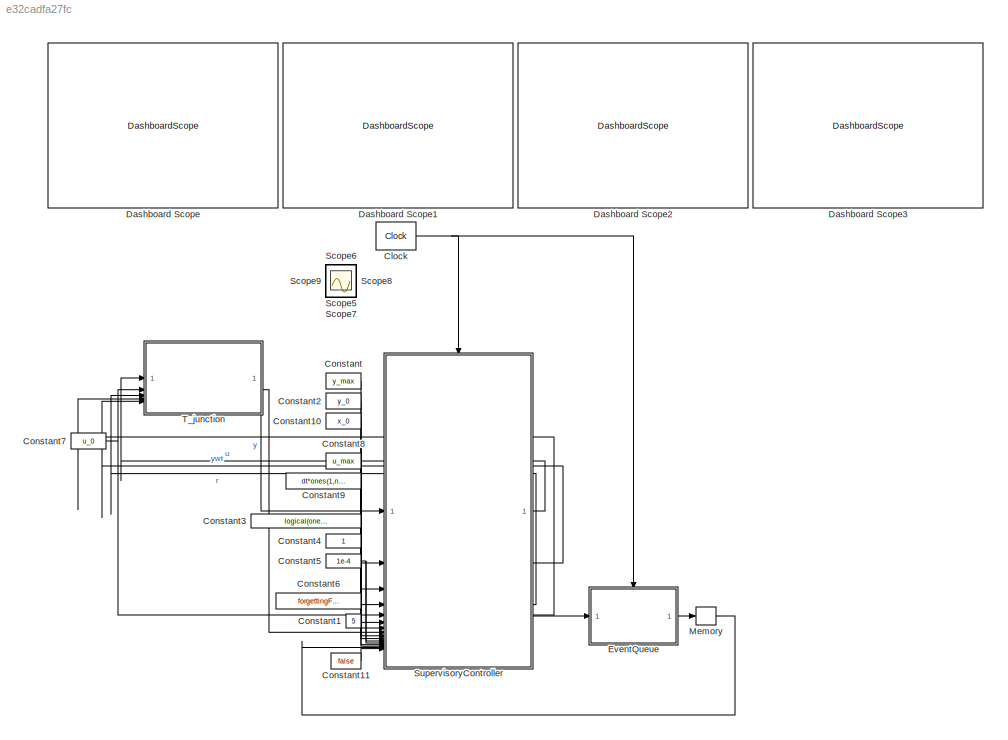
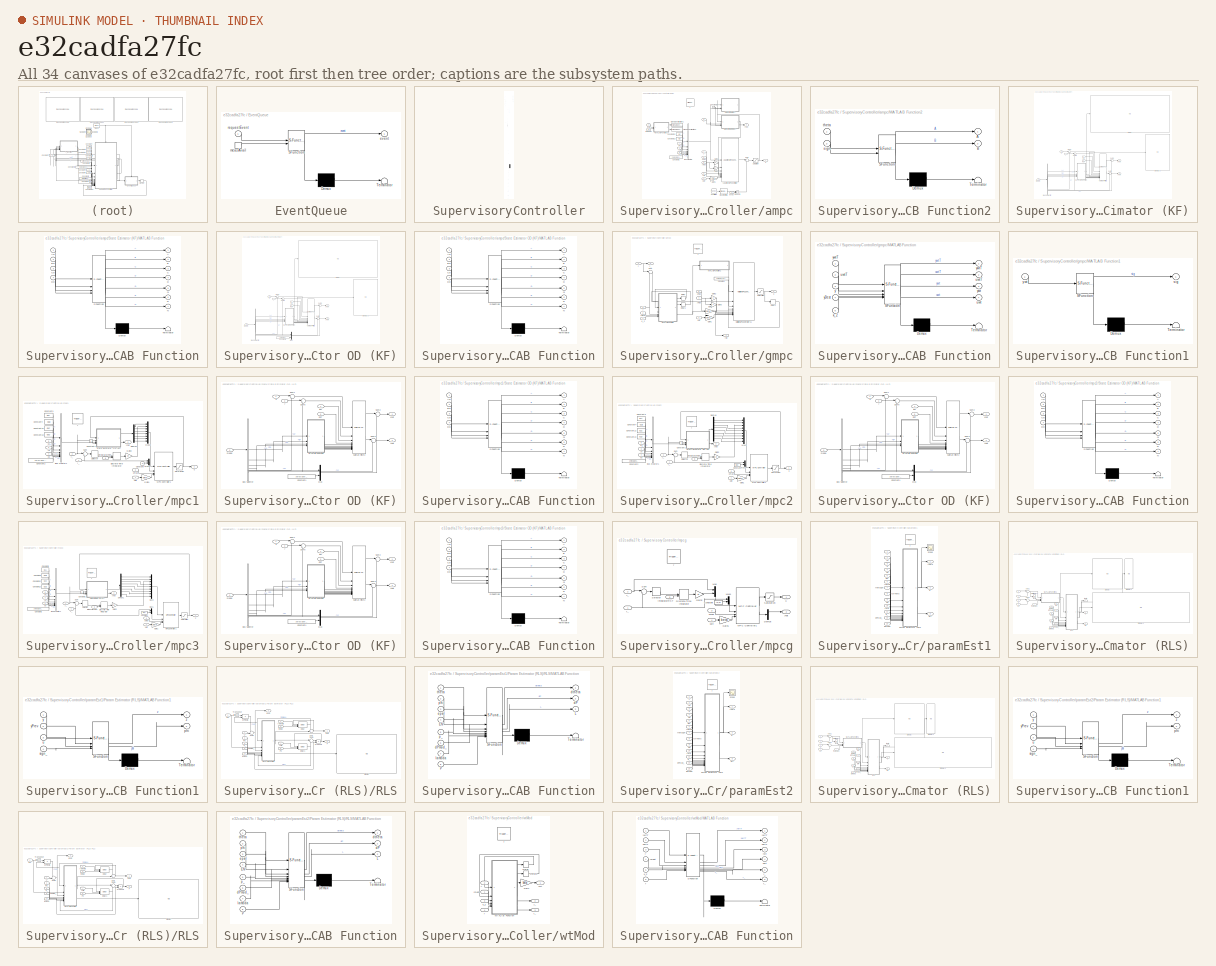
[diagram: thumbnail index - all 34 canvases of the model, root first then tree order]
MODEL slx_e32cadfa27fc
KIND model
CONFIG AbsTol = auto
CONFIG EnableMultiTasking = off
CONFIG FixedStep = 0.001
CONFIG MaxStep = auto
CONFIG MinStep = auto
CONFIG RelTol = 1e-3
CONFIG SampleTimeConstraint = Unconstrained
CONFIG SolverName = FixedStepAuto
CONFIG StartTime = 0.0
CONFIG StopTime = 100
BLOCK [Reference] Clock  REF=simulink_extras/Flip Flops/Clock
  SourceBlock = simulink_extras/Flip Flops/Clock
  SourceType = Digital clock
BLOCK [Constant] Constant
  SampleTime = -1
  Value = y_max
  VectorParams1D = off
BLOCK [Constant] Constant1
  SampleTime = -1
  Value = 5
  VectorParams1D = off
BLOCK [Constant] Constant10
  SampleTime = -1
  Value = x_0
  VectorParams1D = off
BLOCK [Constant] Constant11
  Value = false
BLOCK [Constant] Constant2
  SampleTime = -1
  Value = y_0
  VectorParams1D = off
BLOCK [Constant] Constant3
  SampleTime = -1
  Value = logical(ones(2*no,1))
  VectorParams1D = off
BLOCK [Constant] Constant4
  SampleTime = -1
  VectorParams1D = off
BLOCK [Constant] Constant5
  SampleTime = -1
  Value = 1e-4
  VectorParams1D = off
BLOCK [Constant] Constant6
  SampleTime = -1
  Value = forgettingFactor
  VectorParams1D = off
BLOCK [Constant] Constant7
  SampleTime = -1
  Value = u_0
  VectorParams1D = off
BLOCK [Constant] Constant8
  SampleTime = -1
  Value = u_max
  VectorParams1D = off
BLOCK [Constant] Constant9
  SampleTime = -1
  Value = dt*ones(1,ni)
  VectorParams1D = off
BLOCK [DashboardScope] Dashboard Scope
  Ymax = 200
  Ymin = 0
BLOCK [DashboardScope] Dashboard Scope1
  Ymax = 200
  Ymin = 0
BLOCK [DashboardScope] Dashboard Scope2
  Ymax = 200
  Ymin = 0
BLOCK [DashboardScope] Dashboard Scope3
  Ymax = 200
  Ymin = 0
BLOCK [SubSystem] EventQueue
  ErrorFcn = Stateflow.Translate.translate
  PermitHierarchicalResolution = ExplicitOnly
  SFBlockType = Chart
  TreatAsAtomicUnit = on
BLOCK [Demux] EventQueue/ Demux 
  Outputs = 1
BLOCK [S-Function] EventQueue/ SFunction 
  EnableBusSupport = on
  FunctionName = sf_sfun
  Parameters = eventQueue,nullEv
  PortCounts = [2 2]
  SFcnIsStateOwnerBlock = off
  SFunctionDeploymentMode = off
  Tag = Stateflow S-Function 12
BLOCK [Terminator] EventQueue/ Terminator 
BLOCK [Outport] EventQueue/event
BLOCK [TriggerPort] EventQueue/measAvail
  ShowOutputPort = on
  StatesWhenEnabling = held
  TriggerType = either
  VariantControl = (inherit)
BLOCK [Inport] EventQueue/requestEvent
BLOCK [Memory] Memory
  InitialCondition = nullEv
BLOCK [Scope] Scope
  Floating = off
  IOType = viewer
  NumInputPorts = 1
  ScopeSpecificationString = Simulink.scopes.TimeScopeBlockCfg('CurrentConfiguration', extmgr.ConfigurationSet(extmgr.Configuration('Core','General UI',true),extmgr.Configuration('Core','Source UI',true),extmgr.Configuration('Sources','WiredSimulink',true),extmgr.Configuration('Visuals','Time Domain',true,'SerializedDisplays',{struct('MinYLimReal','-10.13233','MaxYLimReal','91.19097','YLabelReal','','MinYLimMag','0.00000','Ma...<+1899ch>
BLOCK [Scope] Scope1
  Floating = off
  IOType = viewer
  NumInputPorts = 1
  ScopeSpecificationString = Simulink.scopes.TimeScopeBlockCfg('CurrentConfiguration', extmgr.ConfigurationSet(extmgr.Configuration('Core','General UI',true,'FigureColor',[0 0 0]),extmgr.Configuration('Core','Source UI',true),extmgr.Configuration('Sources','WiredSimulink',true,'DataLoggingVariableName','ScopeData1'),extmgr.Configuration('Visuals','Time Domain',true,'SerializedDisplays',{struct('MinYLimReal','-552.56944','MaxY...<+2391ch>
BLOCK [Scope] Scope2
  Floating = off
  IOType = viewer
  NumInputPorts = 1
  ScopeSpecificationString = Simulink.scopes.TimeScopeBlockCfg('CurrentConfiguration', extmgr.ConfigurationSet(extmgr.Configuration('Core','General UI',true),extmgr.Configuration('Core','Source UI',true),extmgr.Configuration('Sources','WiredSimulink',true,'DataLoggingVariableName','ScopeData1'),extmgr.Configuration('Visuals','Time Domain',true,'SerializedDisplays',{struct('MinYLimReal','-0.52559','MaxYLimReal','1.60573','YLab...<+2141ch>
BLOCK [Scope] Scope3
  Floating = off
  IOType = viewer
  NumInputPorts = 1
  ScopeSpecificationString = Simulink.scopes.TimeScopeBlockCfg('CurrentConfiguration', extmgr.ConfigurationSet(extmgr.Configuration('Core','General UI',true),extmgr.Configuration('Core','Source UI',true),extmgr.Configuration('Sources','WiredSimulink',true,'DataLoggingVariableName','ScopeData1'),extmgr.Configuration('Visuals','Time Domain',true,'SerializedDisplays',{struct('MinYLimReal','-0.99632','MaxYLimReal','2.33292','YLab...<+5296ch>
BLOCK [Scope] Scope4
  Floating = off
  IOType = viewer
  NumInputPorts = 1
  ScopeSpecificationString = Simulink.scopes.TimeScopeBlockCfg('CurrentConfiguration', extmgr.ConfigurationSet(extmgr.Configuration('Core','General UI',true),extmgr.Configuration('Core','Source UI',true),extmgr.Configuration('Sources','WiredSimulink',true,'DataLoggingVariableName','ScopeData1'),extmgr.Configuration('Visuals','Time Domain',true,'SerializedDisplays',{struct('MinYLimReal','-677.25253','MaxYLimReal','828.01446','...<+1822ch>
BLOCK [Scope] Scope5
  Floating = off
  IOType = viewer
  NumInputPorts = 1
  ScopeSpecificationString = Simulink.scopes.TimeScopeBlockCfg('CurrentConfiguration', extmgr.ConfigurationSet(extmgr.Configuration('Core','General UI',true),extmgr.Configuration('Core','Source UI',true),extmgr.Configuration('Sources','WiredSimulink',true,'DataLoggingVariableName','ScopeData1'),extmgr.Configuration('Visuals','Time Domain',true,'SerializedDisplays',{struct('MinYLimReal','-51.28504','MaxYLimReal','28.60017','YL...<+1647ch>
BLOCK [Scope] Scope6
  Floating = off
  IOType = viewer
  NumInputPorts = 1
  ScopeSpecificationString = Simulink.scopes.TimeScopeBlockCfg('CurrentConfiguration', extmgr.ConfigurationSet(extmgr.Configuration('Core','General UI',true),extmgr.Configuration('Core','Source UI',true),extmgr.Configuration('Sources','WiredSimulink',true,'DataLoggingVariableName','ScopeData3'),extmgr.Configuration('Visuals','Time Domain',true,'SerializedDisplays',{struct('MinYLimReal','-0.01685','MaxYLimReal','0.15163','YLab...<+1658ch>
BLOCK [Scope] Scope7
  Floating = off
  IOType = viewer
  NumInputPorts = 1
  ScopeSpecificationString = Simulink.scopes.TimeScopeBlockCfg('CurrentConfiguration', extmgr.ConfigurationSet(extmgr.Configuration('Core','General UI',true),extmgr.Configuration('Core','Source UI',true),extmgr.Configuration('Sources','WiredSimulink',true,'DataLoggingVariableName','ScopeData1'),extmgr.Configuration('Visuals','Time Domain',true,'SerializedDisplays',{struct('MinYLimReal','0.75','MaxYLimReal','3.25','YLabelReal'...<+1477ch>
BLOCK [Scope] Scope8
  Floating = off
  IOType = viewer
  NumInputPorts = 1
  ScopeSpecificationString = Simulink.scopes.TimeScopeBlockCfg('CurrentConfiguration', extmgr.ConfigurationSet(extmgr.Configuration('Core','General UI',true),extmgr.Configuration('Core','Source UI',true),extmgr.Configuration('Sources','WiredSimulink',true,'DataLoggingVariableName','ScopeData2'),extmgr.Configuration('Visuals','Time Domain',true,'SerializedDisplays',{struct('MinYLimReal','-2095.51307','MaxYLimReal','2125.11876'...<+1796ch>
BLOCK [Scope] Scope9
  Floating = off
  IOType = viewer
  NumInputPorts = 1
  ScopeSpecificationString = Simulink.scopes.TimeScopeBlockCfg('CurrentConfiguration', extmgr.ConfigurationSet(extmgr.Configuration('Core','General UI',true),extmgr.Configuration('Core','Source UI',true),extmgr.Configuration('Sources','WiredSimulink',true,'DataLoggingVariableName','ScopeData1'),extmgr.Configuration('Visuals','Time Domain',true,'SerializedDisplays',{struct('MinYLimReal','-0.18114','MaxYLimReal','1.48595','YLab...<+2215ch>
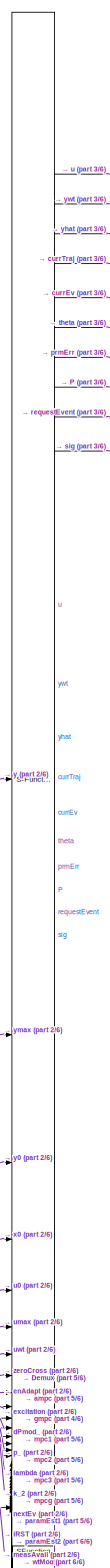
[diagram: SupervisoryController - part 1/6, top center region]
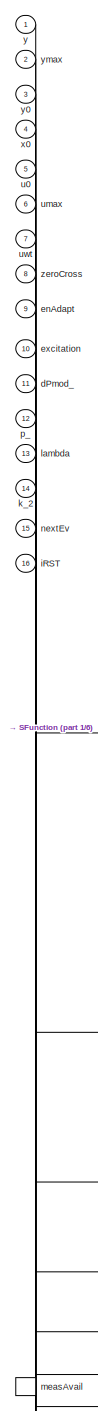
[diagram: SupervisoryController - part 2/6, top left region]
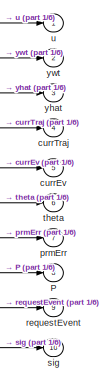
[diagram: SupervisoryController - part 3/6, top right region]
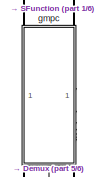
[diagram: SupervisoryController - part 4/6, central region]
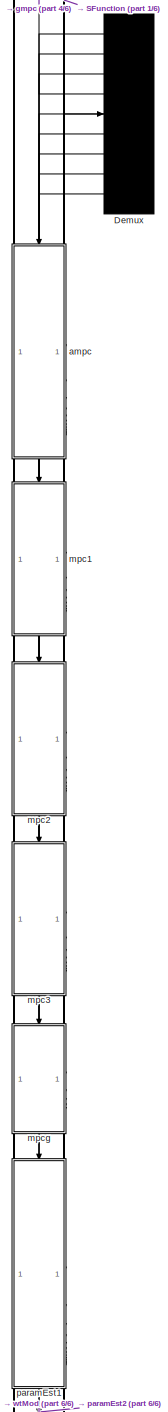
[diagram: SupervisoryController - part 5/6, bottom center region]
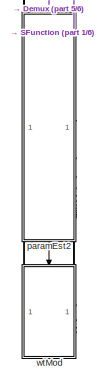
[diagram: SupervisoryController - part 6/6, bottom center region]
BLOCK [SubSystem] SupervisoryController
  ErrorFcn = Stateflow.Translate.translate
  PermitHierarchicalResolution = ExplicitOnly
  SFBlockType = Chart
  TreatAsAtomicUnit = on
BLOCK [Demux] SupervisoryController/ Demux 
  Outputs = 9
BLOCK [S-Function] SupervisoryController/ SFunction 
  EnableBusSupport = on
  FunctionName = sf_sfun
  Parameters = beta,dt,no,np,nullEv
  PortCounts = [39 89]
  SFcnIsStateOwnerBlock = off
  SFunctionDeploymentMode = off
  Tag = Stateflow S-Function 6
BLOCK [Outport] SupervisoryController/P
  Port = 8
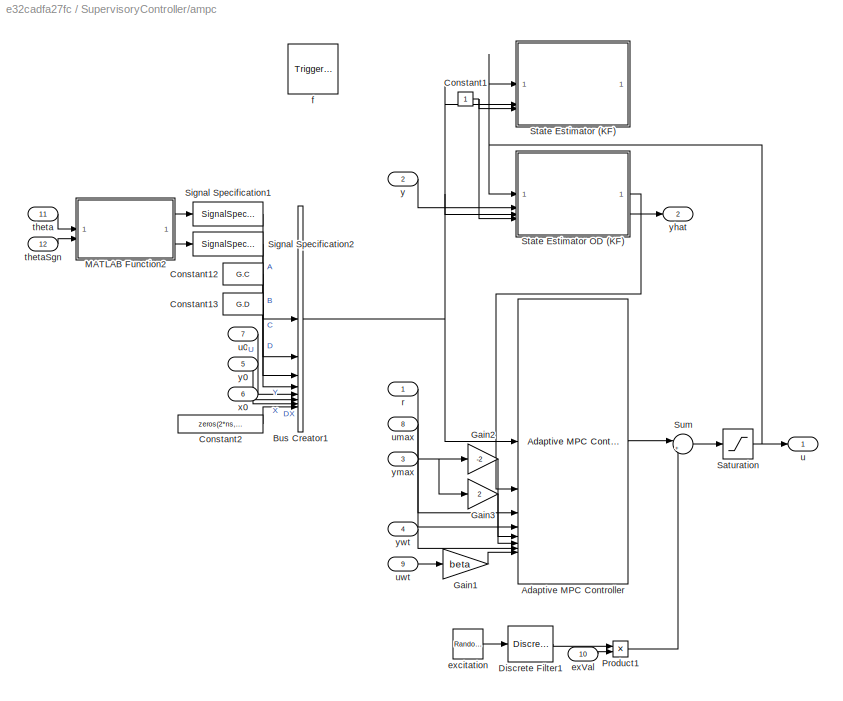
BLOCK [SubSystem] SupervisoryController/ampc
  PreDeleteFcn = Stateflow.SLINSF.SimulinkMan.removePreDeleteFcn
  UndoDeleteFcn = Stateflow.SLINSF.SimulinkMan.restorePreDeleteFcn
BLOCK [Reference] SupervisoryController/ampc/Adaptive MPC Controller  REF=mpclib/Adaptive MPC Controller  (lib defined in mdl_ae329e0e0455)
  SCDEnableBlockLinearizationSpecification = on
  SourceBlock = mpclib/Adaptive MPC Controller
  SourceType = Adaptive MPC
BLOCK [BusCreator] SupervisoryController/ampc/Bus Creator1
  DisplayOption = bar
  InheritFromInputs = on
  Inputs = 8
  NonVirtualBus = on
  OutDataTypeStr = Bus: mdl_bus
BLOCK [Constant] SupervisoryController/ampc/Constant1
  VectorParams1D = off
BLOCK [Constant] SupervisoryController/ampc/Constant12
  Value = G.C
  VectorParams1D = off
BLOCK [Constant] SupervisoryController/ampc/Constant13
  Value = G.D
  VectorParams1D = off
BLOCK [Constant] SupervisoryController/ampc/Constant2
  Value = zeros(2*ns, 1)
  VectorParams1D = off
BLOCK [DiscreteFilter] SupervisoryController/ampc/Discrete Filter1
  Denominator = lpfDen
  InputPortMap = u0
  Numerator = lpfNum
BLOCK [Gain] SupervisoryController/ampc/Gain1
  Gain = beta
BLOCK [Gain] SupervisoryController/ampc/Gain2
  Gain = -2
BLOCK [Gain] SupervisoryController/ampc/Gain3
  Gain = 2
BLOCK [SubSystem] SupervisoryController/ampc/MATLAB Function2
  ErrorFcn = Stateflow.Translate.translate
  LibrarySourceBlock = simulink/User-Defined\nFunctions/MATLAB Function
  PermitHierarchicalResolution = ExplicitOnly
  SFBlockType = MATLAB Function
  TreatAsAtomicUnit = on
BLOCK [Demux] SupervisoryController/ampc/MATLAB Function2/ Demux 
  Outputs = 1
BLOCK [S-Function] SupervisoryController/ampc/MATLAB Function2/ SFunction 
  EnableBusSupport = off
  FunctionName = sf_sfun
  Parameters = dt,mdlNum,ni,no,np,ns
  PortCounts = [2 3]
  SFcnIsStateOwnerBlock = off
  SFunctionDeploymentMode = off
  Tag = Stateflow S-Function 4
BLOCK [Terminator] SupervisoryController/ampc/MATLAB Function2/ Terminator 
BLOCK [Outport] SupervisoryController/ampc/MATLAB Function2/A
BLOCK [Outport] SupervisoryController/ampc/MATLAB Function2/B
  Port = 2
BLOCK [Inport] SupervisoryController/ampc/MATLAB Function2/sign
  Port = 2
BLOCK [Inport] SupervisoryController/ampc/MATLAB Function2/theta
BLOCK [Product] SupervisoryController/ampc/Product1
BLOCK [Saturate] SupervisoryController/ampc/Saturation
  LowerLimit = 0
  UpperLimit = 1000
BLOCK [SignalSpecification] SupervisoryController/ampc/Signal Specification1
  Dimensions = size(G.A)
BLOCK [SignalSpecification] SupervisoryController/ampc/Signal Specification2
  Dimensions = size(G.B)
BLOCK [SubSystem] SupervisoryController/ampc/State Estimator (KF)
  Commented = on
  MinAlgLoopOccurrences = on
BLOCK [BusSelector] SupervisoryController/ampc/State Estimator (KF)/Bus Selector
  OutputSignals = A,B,C,D,U,Y,X,DX
BLOCK [Display] SupervisoryController/ampc/State Estimator (KF)/Display
  Decimation = 1
BLOCK [Display] SupervisoryController/ampc/State Estimator (KF)/Display1
  Decimation = 1
BLOCK [Inport] SupervisoryController/ampc/State Estimator (KF)/EN
  Port = 4
BLOCK [Reference] SupervisoryController/ampc/State Estimator (KF)/Kalman Filter2  REF=ctrlSharedLib/Kalman Filter
  LibrarySourceBlock = cstblocks/State Estimation/Kalman Filter
  SourceBlock = ctrlSharedLib/Kalman Filter
  SourceType = ctrlKalmanFilter
BLOCK [SubSystem] SupervisoryController/ampc/State Estimator (KF)/MATLAB Function
  ErrorFcn = Stateflow.Translate.translate
  LibrarySourceBlock = simulink/User-Defined\nFunctions/MATLAB Function
  PermitHierarchicalResolution = ExplicitOnly
  SFBlockType = MATLAB Function
  TreatAsAtomicUnit = on
BLOCK [Demux] SupervisoryController/ampc/State Estimator (KF)/MATLAB Function/ Demux 
  Outputs = 1
BLOCK [S-Function] SupervisoryController/ampc/State Estimator (KF)/MATLAB Function/ SFunction 
  EnableBusSupport = on
  FunctionName = sf_sfun
  Parameters = Dmn
  PortCounts = [4 8]
  SFcnIsStateOwnerBlock = off
  SFunctionDeploymentMode = off
  Tag = Stateflow S-Function 16
BLOCK [Terminator] SupervisoryController/ampc/State Estimator (KF)/MATLAB Function/ Terminator 
BLOCK [Outport] SupervisoryController/ampc/State Estimator (KF)/MATLAB Function/A
BLOCK [Inport] SupervisoryController/ampc/State Estimator (KF)/MATLAB Function/Ap
BLOCK [Outport] SupervisoryController/ampc/State Estimator (KF)/MATLAB Function/B
  Port = 2
BLOCK [Inport] SupervisoryController/ampc/State Estimator (KF)/MATLAB Function/Bp
  Port = 2
BLOCK [Outport] SupervisoryController/ampc/State Estimator (KF)/MATLAB Function/C
  Port = 3
BLOCK [Inport] SupervisoryController/ampc/State Estimator (KF)/MATLAB Function/Cp
  Port = 3
BLOCK [Outport] SupervisoryController/ampc/State Estimator (KF)/MATLAB Function/D
  Port = 4
BLOCK [Inport] SupervisoryController/ampc/State Estimator (KF)/MATLAB Function/Dp
  Port = 4
BLOCK [Outport] SupervisoryController/ampc/State Estimator (KF)/MATLAB Function/N
  Port = 7
BLOCK [Outport] SupervisoryController/ampc/State Estimator (KF)/MATLAB Function/Q
  Port = 5
BLOCK [Outport] SupervisoryController/ampc/State Estimator (KF)/MATLAB Function/R
  Port = 6
BLOCK [Inport] SupervisoryController/ampc/State Estimator (KF)/RST
  Port = 5
  PortDimensions = 1
BLOCK [Sum] SupervisoryController/ampc/State Estimator (KF)/Sum1
  Inputs = |+-
BLOCK [Sum] SupervisoryController/ampc/State Estimator (KF)/Sum2
  Inputs = |++
BLOCK [Sum] SupervisoryController/ampc/State Estimator (KF)/Sum3
  Inputs = |++
BLOCK [Sum] SupervisoryController/ampc/State Estimator (KF)/Sum6
  Inputs = |+-
BLOCK [Inport] SupervisoryController/ampc/State Estimator (KF)/model
  Port = 3
BLOCK [Inport] SupervisoryController/ampc/State Estimator (KF)/u
BLOCK [Outport] SupervisoryController/ampc/State Estimator (KF)/xhat
BLOCK [Inport] SupervisoryController/ampc/State Estimator (KF)/y
  Port = 2
BLOCK [Outport] SupervisoryController/ampc/State Estimator (KF)/yhat
  Port = 2
BLOCK [SubSystem] SupervisoryController/ampc/State Estimator OD (KF)
  MinAlgLoopOccurrences = on
BLOCK [BusSelector] SupervisoryController/ampc/State Estimator OD (KF)/Bus Selector
  OutputSignals = A,B,C,D,U,Y,X,DX
BLOCK [Constant] SupervisoryController/ampc/State Estimator OD (KF)/Constant1
  Value = zeros(size(God.A,1),1)
  VectorParams1D = off
BLOCK [Display] SupervisoryController/ampc/State Estimator OD (KF)/Display
  Decimation = 1
BLOCK [Display] SupervisoryController/ampc/State Estimator OD (KF)/Display1
  Decimation = 1
BLOCK [Inport] SupervisoryController/ampc/State Estimator OD (KF)/EN
  Port = 4
BLOCK [Reference] SupervisoryController/ampc/State Estimator OD (KF)/Kalman Filter2  REF=ctrlSharedLib/Kalman Filter
  LibrarySourceBlock = cstblocks/State Estimation/Kalman Filter
  SourceBlock = ctrlSharedLib/Kalman Filter
  SourceType = ctrlKalmanFilter
BLOCK [SubSystem] SupervisoryController/ampc/State Estimator OD (KF)/MATLAB Function
  ErrorFcn = Stateflow.Translate.translate
  LibrarySourceBlock = simulink/User-Defined\nFunctions/MATLAB Function
  PermitHierarchicalResolution = ExplicitOnly
  SFBlockType = MATLAB Function
  TreatAsAtomicUnit = on
BLOCK [Demux] SupervisoryController/ampc/State Estimator OD (KF)/MATLAB Function/ Demux 
  Outputs = 1
BLOCK [S-Function] SupervisoryController/ampc/State Estimator OD (KF)/MATLAB Function/ SFunction 
  EnableBusSupport = on
  FunctionName = sf_sfun
  Parameters = Aod,Bod,Cod,Dmn,Dod,ni,no,ns
  PortCounts = [4 8]
  SFcnIsStateOwnerBlock = off
  SFunctionDeploymentMode = off
  Tag = Stateflow S-Function 15
BLOCK [Terminator] SupervisoryController/ampc/State Estimator OD (KF)/MATLAB Function/ Terminator 
BLOCK [Outport] SupervisoryController/ampc/State Estimator OD (KF)/MATLAB Function/A
BLOCK [Inport] SupervisoryController/ampc/State Estimator OD (KF)/MATLAB Function/Ap
BLOCK [Outport] SupervisoryController/ampc/State Estimator OD (KF)/MATLAB Function/B
  Port = 2
BLOCK [Inport] SupervisoryController/ampc/State Estimator OD (KF)/MATLAB Function/Bp
  Port = 2
BLOCK [Outport] SupervisoryController/ampc/State Estimator OD (KF)/MATLAB Function/C
  Port = 3
BLOCK [Inport] SupervisoryController/ampc/State Estimator OD (KF)/MATLAB Function/Cp
  Port = 3
BLOCK [Outport] SupervisoryController/ampc/State Estimator OD (KF)/MATLAB Function/D
  Port = 4
BLOCK [Inport] SupervisoryController/ampc/State Estimator OD (KF)/MATLAB Function/Dp
  Port = 4
BLOCK [Outport] SupervisoryController/ampc/State Estimator OD (KF)/MATLAB Function/N
  Port = 7
BLOCK [Outport] SupervisoryController/ampc/State Estimator OD (KF)/MATLAB Function/Q
  Port = 5
BLOCK [Outport] SupervisoryController/ampc/State Estimator OD (KF)/MATLAB Function/R
  Port = 6
BLOCK [Mux] SupervisoryController/ampc/State Estimator OD (KF)/Mux
  DisplayOption = bar
  Inputs = 2
BLOCK [Inport] SupervisoryController/ampc/State Estimator OD (KF)/RST
  Port = 5
  PortDimensions = 1
BLOCK [Sum] SupervisoryController/ampc/State Estimator OD (KF)/Sum1
  Inputs = |+-
BLOCK [Sum] SupervisoryController/ampc/State Estimator OD (KF)/Sum2
  Inputs = |++
BLOCK [Sum] SupervisoryController/ampc/State Estimator OD (KF)/Sum3
  Inputs = |++
BLOCK [Sum] SupervisoryController/ampc/State Estimator OD (KF)/Sum6
  Inputs = |+-
BLOCK [Inport] SupervisoryController/ampc/State Estimator OD (KF)/model
  Port = 3
BLOCK [Inport] SupervisoryController/ampc/State Estimator OD (KF)/u
BLOCK [Outport] SupervisoryController/ampc/State Estimator OD (KF)/xhat
BLOCK [Inport] SupervisoryController/ampc/State Estimator OD (KF)/y
  Port = 2
BLOCK [Outport] SupervisoryController/ampc/State Estimator OD (KF)/yhat
  Port = 2
BLOCK [Sum] SupervisoryController/ampc/Sum
  Inputs = |++
BLOCK [Inport] SupervisoryController/ampc/exVal
  OutDataTypeStr = double
  Port = 10
  PortDimensions = 1
  SignalType = real
  VarSizeSig = No
BLOCK [RandomNumber] SupervisoryController/ampc/excitation
  Mean = [0 0 0]
  Seed = [12345 12346 12347]
  Variance = [1 1 1]
BLOCK [TriggerPort] SupervisoryController/ampc/f
  CopyFcn = Stateflow.SLINSF.SimulinkMan.removeBlockPreDeleteFcn
  PreDeleteFcn = Stateflow.SLINSF.SimulinkMan.unsafePredeleteFcn
  StatesWhenEnabling = held
  TriggerType = function-call
  VariantControl = (inherit)
BLOCK [Inport] SupervisoryController/ampc/r
  OutDataTypeStr = double
  PortDimensions = [2*no, 1]
  SignalType = real
  VarSizeSig = No
BLOCK [Inport] SupervisoryController/ampc/theta
  OutDataTypeStr = double
  Port = 11
  PortDimensions = [2*np*no, 1]
  SignalType = real
  VarSizeSig = No
BLOCK [Inport] SupervisoryController/ampc/thetaSgn
  OutDataTypeStr = double
  Port = 12
  PortDimensions = [2*np*no, 1]
  SignalType = real
  VarSizeSig = No
BLOCK [Outport] SupervisoryController/ampc/u
BLOCK [Inport] SupervisoryController/ampc/u0
  OutDataTypeStr = double
  Port = 7
  PortDimensions = [ni, 1]
  SignalType = real
  VarSizeSig = No
BLOCK [Inport] SupervisoryController/ampc/umax
  OutDataTypeStr = double
  Port = 8
  PortDimensions = [ni, 1]
  SignalType = real
  VarSizeSig = No
BLOCK [Inport] SupervisoryController/ampc/uwt
  OutDataTypeStr = double
  Port = 9
  PortDimensions = [1, ni]
  SignalType = real
  VarSizeSig = No
BLOCK [Inport] SupervisoryController/ampc/x0
  OutDataTypeStr = double
  Port = 6
  PortDimensions = [2*ns, 1]
  SignalType = real
  VarSizeSig = No
BLOCK [Inport] SupervisoryController/ampc/y
  OutDataTypeStr = double
  Port = 2
  PortDimensions = [2*no, 1]
  SignalType = real
  VarSizeSig = No
BLOCK [Inport] SupervisoryController/ampc/y0
  OutDataTypeStr = double
  Port = 5
  PortDimensions = [2*no, 1]
  SignalType = real
  VarSizeSig = No
BLOCK [Outport] SupervisoryController/ampc/yhat
  Port = 2
BLOCK [Inport] SupervisoryController/ampc/ymax
  OutDataTypeStr = double
  Port = 3
  PortDimensions = [2*no,1]
  SignalType = real
  VarSizeSig = No
BLOCK [Inport] SupervisoryController/ampc/ywt
  OutDataTypeStr = double
  Port = 4
  PortDimensions = [1, 2*no]
  SignalType = real
  VarSizeSig = No
BLOCK [Outport] SupervisoryController/currEv
  Port = 5
BLOCK [Outport] SupervisoryController/currTraj
  Port = 4
BLOCK [Inport] SupervisoryController/dPmod_
  Port = 11
BLOCK [Inport] SupervisoryController/enAdapt
  Port = 9
BLOCK [Inport] SupervisoryController/excitation
  Port = 10
BLOCK [SubSystem] SupervisoryController/gmpc
  Commented = on
  PreDeleteFcn = Stateflow.SLINSF.SimulinkMan.removePreDeleteFcn
  UndoDeleteFcn = Stateflow.SLINSF.SimulinkMan.restorePreDeleteFcn
BLOCK [Constant] SupervisoryController/gmpc/Constant
  Value = zeros(2*no, 1)
  VectorParams1D = off
BLOCK [Delay] SupervisoryController/gmpc/Delay
  DelayLength = 1
  InitialCondition = ywt0
  InputPortMap = u0
BLOCK [Delay] SupervisoryController/gmpc/Delay1
  DelayLength = 1
  InitialCondition = uwt0
  InputPortMap = u0
BLOCK [Delay] SupervisoryController/gmpc/Delay2
  DelayLength = 1
  InputPortMap = u0
BLOCK [Gain] SupervisoryController/gmpc/Gain
  Gain = beta
BLOCK [Gain] SupervisoryController/gmpc/Gain1
  Gain = beta
BLOCK [Gain] SupervisoryController/gmpc/Gain2
  Gain = -2
BLOCK [Gain] SupervisoryController/gmpc/Gain3
  Gain = 2
BLOCK [SubSystem] SupervisoryController/gmpc/MATLAB Function
  ErrorFcn = Stateflow.Translate.translate
  LibrarySourceBlock = simulink/User-Defined\nFunctions/MATLAB Function
  PermitHierarchicalResolution = ExplicitOnly
  SFBlockType = MATLAB Function
  TreatAsAtomicUnit = on
BLOCK [Demux] SupervisoryController/gmpc/MATLAB Function/ Demux 
  Outputs = 1
BLOCK [S-Function] SupervisoryController/gmpc/MATLAB Function/ SFunction 
  EnableBusSupport = off
  FunctionName = sf_sfun
  Parameters = dt,ni,no
  PortCounts = [5 5]
  SFcnIsStateOwnerBlock = off
  SFunctionDeploymentMode = off
  Tag = Stateflow S-Function 11
BLOCK [Terminator] SupervisoryController/gmpc/MATLAB Function/ Terminator 
BLOCK [Inport] SupervisoryController/gmpc/MATLAB Function/k_2
  Port = 5
BLOCK [Outport] SupervisoryController/gmpc/MATLAB Function/uwt
  Port = 4
BLOCK [Outport] SupervisoryController/gmpc/MATLAB Function/uwtT
  Port = 2
BLOCK [Inport] SupervisoryController/gmpc/MATLAB Function/uwtT 
  Port = 2
BLOCK [Inport] SupervisoryController/gmpc/MATLAB Function/y
  Port = 3
BLOCK [Inport] SupervisoryController/gmpc/MATLAB Function/yDest
  Port = 4
BLOCK [Outport] SupervisoryController/gmpc/MATLAB Function/ywt
  Port = 3
BLOCK [Outport] SupervisoryController/gmpc/MATLAB Function/ywtT
BLOCK [Inport] SupervisoryController/gmpc/MATLAB Function/ywtT 
BLOCK [SubSystem] SupervisoryController/gmpc/MATLAB Function1
  ErrorFcn = Stateflow.Translate.translate
  LibrarySourceBlock = simulink/User-Defined\nFunctions/MATLAB Function
  PermitHierarchicalResolution = ExplicitOnly
  SFBlockType = MATLAB Function
  TreatAsAtomicUnit = on
BLOCK [Demux] SupervisoryController/gmpc/MATLAB Function1/ Demux 
  Outputs = 1
BLOCK [S-Function] SupervisoryController/gmpc/MATLAB Function1/ SFunction 
  EnableBusSupport = off
  FunctionName = sf_sfun
  PortCounts = [1 2]
  SFcnIsStateOwnerBlock = off
  SFunctionDeploymentMode = off
  Tag = Stateflow S-Function 13
BLOCK [Terminator] SupervisoryController/gmpc/MATLAB Function1/ Terminator 
BLOCK [Outport] SupervisoryController/gmpc/MATLAB Function1/sig
BLOCK [Inport] SupervisoryController/gmpc/MATLAB Function1/ywt
BLOCK [Reference] SupervisoryController/gmpc/Multiple MPC Controllers1  REF=mpclib/Multiple MPC Controllers  (lib defined in mdl_ae329e0e0455)
  SourceBlock = mpclib/Multiple MPC Controllers
  SourceType = Multiple MPC
BLOCK [Saturate] SupervisoryController/gmpc/Saturation
  LowerLimit = 0
  UpperLimit = 1000
BLOCK [Sum] SupervisoryController/gmpc/Sum
  Inputs = |+-
BLOCK [TriggerPort] SupervisoryController/gmpc/f
  CopyFcn = Stateflow.SLINSF.SimulinkMan.removeBlockPreDeleteFcn
  PreDeleteFcn = Stateflow.SLINSF.SimulinkMan.unsafePredeleteFcn
  StatesWhenEnabling = held
  TriggerType = function-call
  VariantControl = (inherit)
BLOCK [Inport] SupervisoryController/gmpc/k_2
  OutDataTypeStr = double
  Port = 7
  PortDimensions = 1
  SignalType = real
  VarSizeSig = No
BLOCK [Inport] SupervisoryController/gmpc/r
  OutDataTypeStr = double
  PortDimensions = [2*no, 1]
  SignalType = real
  VarSizeSig = No
BLOCK [Outport] SupervisoryController/gmpc/r_
  Port = 3
BLOCK [Outport] SupervisoryController/gmpc/u
BLOCK [Inport] SupervisoryController/gmpc/umax
  OutDataTypeStr = double
  Port = 5
  PortDimensions = [ni, 1]
  SignalType = real
  VarSizeSig = No
BLOCK [Inport] SupervisoryController/gmpc/uwt
  OutDataTypeStr = double
  Port = 6
  PortDimensions = [1, ni]
  SignalType = real
  VarSizeSig = No
BLOCK [Inport] SupervisoryController/gmpc/y
  OutDataTypeStr = double
  Port = 3
  PortDimensions = [2*no, 1]
  SignalType = real
  VarSizeSig = No
BLOCK [Inport] SupervisoryController/gmpc/yDest
  OutDataTypeStr = double
  Port = 2
  PortDimensions = [2*no, 1]
  SignalType = real
  VarSizeSig = No
BLOCK [Inport] SupervisoryController/gmpc/ymax
  OutDataTypeStr = double
  Port = 4
  PortDimensions = [2*no,1]
  SignalType = real
  VarSizeSig = No
BLOCK [Outport] SupervisoryController/gmpc/ywt
  Port = 2
BLOCK [Inport] SupervisoryController/iRST
  Port = 16
BLOCK [Inport] SupervisoryController/k_2
  Port = 14
BLOCK [Inport] SupervisoryController/lambda
  Port = 13
BLOCK [TriggerPort] SupervisoryController/measAvail
  ShowOutputPort = on
  StatesWhenEnabling = held
  TriggerType = either
  VariantControl = (inherit)
BLOCK [SubSystem] SupervisoryController/mpc1
  PreDeleteFcn = Stateflow.SLINSF.SimulinkMan.removePreDeleteFcn
  UndoDeleteFcn = Stateflow.SLINSF.SimulinkMan.restorePreDeleteFcn
BLOCK [BusCreator] SupervisoryController/mpc1/Bus Creator1
  DisplayOption = bar
  InheritFromInputs = on
  Inputs = 8
  NonVirtualBus = on
  OutDataTypeStr = Bus: mdl0_bus
BLOCK [Constant] SupervisoryController/mpc1/Constant
  Value = 0
  VectorParams1D = off
BLOCK [Constant] SupervisoryController/mpc1/Constant1
  VectorParams1D = off
BLOCK [Constant] SupervisoryController/mpc1/Constant12
  Value = G0.C
  VectorParams1D = off
BLOCK [Constant] SupervisoryController/mpc1/Constant13
  Value = G0.D
  VectorParams1D = off
BLOCK [Constant] SupervisoryController/mpc1/Constant2
  Value = zeros(size(G0.A, 1), 1)
  VectorParams1D = off
BLOCK [Constant] SupervisoryController/mpc1/Constant3
  Value = G0.A
  VectorParams1D = off
BLOCK [Constant] SupervisoryController/mpc1/Constant4
  Value = G0.B
  VectorParams1D = off
BLOCK [Demux] SupervisoryController/mpc1/Demux
  Outputs = 7
BLOCK [DiscreteIntegrator] SupervisoryController/mpc1/Discrete-Time Integrator
  ExternalReset = rising
  ICPrevOutput = DiscIntNeverNeededParam
  ICPrevScaledInput = DiscIntNeverNeededParam
  InitialConditionSetting = Auto
  IntegratorMethod = Accumulation: Forward Euler
  SampleTime = -1
BLOCK [Gain] SupervisoryController/mpc1/Gain1
  Gain = beta
BLOCK [Gain] SupervisoryController/mpc1/Gain2
  Gain = dt
BLOCK [Reference] SupervisoryController/mpc1/MPC Controller1  REF=mpclib/MPC Controller  (lib defined in mdl_ae329e0e0455)
  SCDEnableBlockLinearizationSpecification = on
  SourceBlock = mpclib/MPC Controller
  SourceType = MPC
BLOCK [Mux] SupervisoryController/mpc1/Mux1
  DisplayOption = bar
  Inputs = 2
BLOCK [Mux] SupervisoryController/mpc1/Mux2
  DisplayOption = bar
  Inputs = 8
BLOCK [Saturate] SupervisoryController/mpc1/Saturation
  LowerLimit = 0
  UpperLimit = 1000
BLOCK [Selector] SupervisoryController/mpc1/Selector
  IndexOptions = Index vector (dialog)
  Indices = 1
  InputPortWidth = 3
  OutputSizes = 1
BLOCK [SubSystem] SupervisoryController/mpc1/State Estimator OD (KF)
  MinAlgLoopOccurrences = on
BLOCK [BusSelector] SupervisoryController/mpc1/State Estimator OD (KF)/Bus Selector
  OutputSignals = A,B,C,D,U,Y,X,DX
BLOCK [Constant] SupervisoryController/mpc1/State Estimator OD (KF)/Constant1
  Value = zeros(size(God1.A,1),1)
  VectorParams1D = off
BLOCK [Inport] SupervisoryController/mpc1/State Estimator OD (KF)/EN
  Port = 4
BLOCK [Reference] SupervisoryController/mpc1/State Estimator OD (KF)/Kalman Filter2  REF=ctrlSharedLib/Kalman Filter
  LibrarySourceBlock = cstblocks/State Estimation/Kalman Filter
  SourceBlock = ctrlSharedLib/Kalman Filter
  SourceType = ctrlKalmanFilter
BLOCK [SubSystem] SupervisoryController/mpc1/State Estimator OD (KF)/MATLAB Function
  ErrorFcn = Stateflow.Translate.translate
  LibrarySourceBlock = simulink/User-Defined\nFunctions/MATLAB Function
  PermitHierarchicalResolution = ExplicitOnly
  SFBlockType = MATLAB Function
  TreatAsAtomicUnit = on
BLOCK [Demux] SupervisoryController/mpc1/State Estimator OD (KF)/MATLAB Function/ Demux 
  Outputs = 1
BLOCK [S-Function] SupervisoryController/mpc1/State Estimator OD (KF)/MATLAB Function/ SFunction 
  EnableBusSupport = on
  FunctionName = sf_sfun
  Parameters = Aod1,Bod1,Cod1,Dmn1,Dod1
  PortCounts = [4 8]
  SFcnIsStateOwnerBlock = off
  SFunctionDeploymentMode = off
  Tag = Stateflow S-Function 19
BLOCK [Terminator] SupervisoryController/mpc1/State Estimator OD (KF)/MATLAB Function/ Terminator 
BLOCK [Outport] SupervisoryController/mpc1/State Estimator OD (KF)/MATLAB Function/A
BLOCK [Inport] SupervisoryController/mpc1/State Estimator OD (KF)/MATLAB Function/Ap
BLOCK [Outport] SupervisoryController/mpc1/State Estimator OD (KF)/MATLAB Function/B
  Port = 2
BLOCK [Inport] SupervisoryController/mpc1/State Estimator OD (KF)/MATLAB Function/Bp
  Port = 2
BLOCK [Outport] SupervisoryController/mpc1/State Estimator OD (KF)/MATLAB Function/C
  Port = 3
BLOCK [Inport] SupervisoryController/mpc1/State Estimator OD (KF)/MATLAB Function/Cp
  Port = 3
BLOCK [Outport] SupervisoryController/mpc1/State Estimator OD (KF)/MATLAB Function/D
  Port = 4
BLOCK [Inport] SupervisoryController/mpc1/State Estimator OD (KF)/MATLAB Function/Dp
  Port = 4
BLOCK [Outport] SupervisoryController/mpc1/State Estimator OD (KF)/MATLAB Function/N
  Port = 7
BLOCK [Outport] SupervisoryController/mpc1/State Estimator OD (KF)/MATLAB Function/Q
  Port = 5
BLOCK [Outport] SupervisoryController/mpc1/State Estimator OD (KF)/MATLAB Function/R
  Port = 6
BLOCK [Mux] SupervisoryController/mpc1/State Estimator OD (KF)/Mux
  DisplayOption = bar
  Inputs = 2
BLOCK [Inport] SupervisoryController/mpc1/State Estimator OD (KF)/RST
  Port = 5
  PortDimensions = 1
BLOCK [Sum] SupervisoryController/mpc1/State Estimator OD (KF)/Sum1
  Inputs = |+-
BLOCK [Sum] SupervisoryController/mpc1/State Estimator OD (KF)/Sum2
  Inputs = |++
BLOCK [Sum] SupervisoryController/mpc1/State Estimator OD (KF)/Sum3
  Inputs = |++
BLOCK [Sum] SupervisoryController/mpc1/State Estimator OD (KF)/Sum6
  Inputs = |+-
BLOCK [Inport] SupervisoryController/mpc1/State Estimator OD (KF)/model
  Port = 3
BLOCK [Inport] SupervisoryController/mpc1/State Estimator OD (KF)/u
BLOCK [Outport] SupervisoryController/mpc1/State Estimator OD (KF)/xhat
BLOCK [Inport] SupervisoryController/mpc1/State Estimator OD (KF)/y
  Port = 2
BLOCK [Outport] SupervisoryController/mpc1/State Estimator OD (KF)/yhat
  Port = 2
BLOCK [Sum] SupervisoryController/mpc1/Sum
  Inputs = |+-
BLOCK [TriggerPort] SupervisoryController/mpc1/f
  CopyFcn = Stateflow.SLINSF.SimulinkMan.removeBlockPreDeleteFcn
  PreDeleteFcn = Stateflow.SLINSF.SimulinkMan.unsafePredeleteFcn
  StatesWhenEnabling = held
  TriggerType = function-call
  VariantControl = (inherit)
BLOCK [Inport] SupervisoryController/mpc1/integratorRST
  OutDataTypeStr = boolean
  Port = 8
  PortDimensions = 1
  SignalType = real
  VarSizeSig = No
BLOCK [Inport] SupervisoryController/mpc1/r_
  OutDataTypeStr = double
  PortDimensions = [no, 1]
  SignalType = real
  VarSizeSig = No
BLOCK [Outport] SupervisoryController/mpc1/u
BLOCK [Inport] SupervisoryController/mpc1/u0
  OutDataTypeStr = double
  Port = 5
  PortDimensions = [ni, 1]
  SignalType = real
  VarSizeSig = No
BLOCK [Inport] SupervisoryController/mpc1/umax
  OutDataTypeStr = double
  Port = 6
  PortDimensions = [ni, 1]
  SignalType = real
  VarSizeSig = No
BLOCK [Inport] SupervisoryController/mpc1/uwt
  OutDataTypeStr = double
  Port = 7
  PortDimensions = [1, ni]
  SignalType = real
  VarSizeSig = No
BLOCK [Inport] SupervisoryController/mpc1/x0
  OutDataTypeStr = double
  Port = 4
  PortDimensions = [size(G0.A, 1), 1]
  SignalType = real
  VarSizeSig = No
BLOCK [Inport] SupervisoryController/mpc1/y0
  OutDataTypeStr = double
  Port = 3
  PortDimensions = [no, 1]
  SignalType = real
  VarSizeSig = No
BLOCK [Inport] SupervisoryController/mpc1/y_
  OutDataTypeStr = double
  Port = 2
  PortDimensions = [no, 1]
  SignalType = real
  VarSizeSig = No
BLOCK [Outport] SupervisoryController/mpc1/yhat
  Port = 2
BLOCK [SubSystem] SupervisoryController/mpc2
  PreDeleteFcn = Stateflow.SLINSF.SimulinkMan.removePreDeleteFcn
  UndoDeleteFcn = Stateflow.SLINSF.SimulinkMan.restorePreDeleteFcn
BLOCK [BusCreator] SupervisoryController/mpc2/Bus Creator1
  DisplayOption = bar
  InheritFromInputs = on
  Inputs = 8
  NonVirtualBus = on
  OutDataTypeStr = Bus: mdl1_bus
BLOCK [Constant] SupervisoryController/mpc2/Constant
  Value = [0;0]
  VectorParams1D = off
BLOCK [Constant] SupervisoryController/mpc2/Constant1
  VectorParams1D = off
BLOCK [Constant] SupervisoryController/mpc2/Constant12
  Value = G1.C
  VectorParams1D = off
BLOCK [Constant] SupervisoryController/mpc2/Constant13
  Value = G1.D
  VectorParams1D = off
BLOCK [Constant] SupervisoryController/mpc2/Constant2
  Value = zeros(size(G1.A, 1), 1)
  VectorParams1D = off
BLOCK [Constant] SupervisoryController/mpc2/Constant3
  Value = G1.A
  VectorParams1D = off
BLOCK [Constant] SupervisoryController/mpc2/Constant4
  Value = G1.B
  VectorParams1D = off
BLOCK [Demux] SupervisoryController/mpc2/Demux
  Outputs = 8
BLOCK [DiscreteIntegrator] SupervisoryController/mpc2/Discrete-Time Integrator
  ExternalReset = rising
  ICPrevOutput = DiscIntNeverNeededParam
  ICPrevScaledInput = DiscIntNeverNeededParam
  InitialCondition = zeros(2, 1)
  InitialConditionSetting = Auto
  IntegratorMethod = Accumulation: Forward Euler
  SampleTime = -1
BLOCK [Gain] SupervisoryController/mpc2/Gain1
  Gain = beta
BLOCK [Gain] SupervisoryController/mpc2/Gain2
  Gain = dt
BLOCK [Reference] SupervisoryController/mpc2/MPC Controller1  REF=mpclib/MPC Controller  (lib defined in mdl_ae329e0e0455)
  SCDEnableBlockLinearizationSpecification = on
  SourceBlock = mpclib/MPC Controller
  SourceType = MPC
BLOCK [Mux] SupervisoryController/mpc2/Mux1
  DisplayOption = bar
  Inputs = 2
BLOCK [Mux] SupervisoryController/mpc2/Mux2
  DisplayOption = bar
  Inputs = 9
BLOCK [Saturate] SupervisoryController/mpc2/Saturation
  LowerLimit = 0
  UpperLimit = 1000
BLOCK [Selector] SupervisoryController/mpc2/Selector
  IndexOptions = Index vector (dialog)
  Indices = [2 3]
  InputPortWidth = 3
  OutputSizes = 1
BLOCK [SubSystem] SupervisoryController/mpc2/State Estimator OD (KF)
  MinAlgLoopOccurrences = on
BLOCK [BusSelector] SupervisoryController/mpc2/State Estimator OD (KF)/Bus Selector
  OutputSignals = A,B,C,D,U,Y,X,DX
BLOCK [Constant] SupervisoryController/mpc2/State Estimator OD (KF)/Constant1
  Value = zeros(size(God2.A,1),1)
  VectorParams1D = off
BLOCK [Inport] SupervisoryController/mpc2/State Estimator OD (KF)/EN
  Port = 4
BLOCK [Reference] SupervisoryController/mpc2/State Estimator OD (KF)/Kalman Filter2  REF=ctrlSharedLib/Kalman Filter
  LibrarySourceBlock = cstblocks/State Estimation/Kalman Filter
  SourceBlock = ctrlSharedLib/Kalman Filter
  SourceType = ctrlKalmanFilter
BLOCK [SubSystem] SupervisoryController/mpc2/State Estimator OD (KF)/MATLAB Function
  ErrorFcn = Stateflow.Translate.translate
  LibrarySourceBlock = simulink/User-Defined\nFunctions/MATLAB Function
  PermitHierarchicalResolution = ExplicitOnly
  SFBlockType = MATLAB Function
  TreatAsAtomicUnit = on
BLOCK [Demux] SupervisoryController/mpc2/State Estimator OD (KF)/MATLAB Function/ Demux 
  Outputs = 1
BLOCK [S-Function] SupervisoryController/mpc2/State Estimator OD (KF)/MATLAB Function/ SFunction 
  EnableBusSupport = on
  FunctionName = sf_sfun
  Parameters = Aod2,Bod2,Cod2,Dmn1,Dod2
  PortCounts = [4 8]
  SFcnIsStateOwnerBlock = off
  SFunctionDeploymentMode = off
  Tag = Stateflow S-Function 18
BLOCK [Terminator] SupervisoryController/mpc2/State Estimator OD (KF)/MATLAB Function/ Terminator 
BLOCK [Outport] SupervisoryController/mpc2/State Estimator OD (KF)/MATLAB Function/A
BLOCK [Inport] SupervisoryController/mpc2/State Estimator OD (KF)/MATLAB Function/Ap
BLOCK [Outport] SupervisoryController/mpc2/State Estimator OD (KF)/MATLAB Function/B
  Port = 2
BLOCK [Inport] SupervisoryController/mpc2/State Estimator OD (KF)/MATLAB Function/Bp
  Port = 2
BLOCK [Outport] SupervisoryController/mpc2/State Estimator OD (KF)/MATLAB Function/C
  Port = 3
BLOCK [Inport] SupervisoryController/mpc2/State Estimator OD (KF)/MATLAB Function/Cp
  Port = 3
BLOCK [Outport] SupervisoryController/mpc2/State Estimator OD (KF)/MATLAB Function/D
  Port = 4
BLOCK [Inport] SupervisoryController/mpc2/State Estimator OD (KF)/MATLAB Function/Dp
  Port = 4
BLOCK [Outport] SupervisoryController/mpc2/State Estimator OD (KF)/MATLAB Function/N
  Port = 7
BLOCK [Outport] SupervisoryController/mpc2/State Estimator OD (KF)/MATLAB Function/Q
  Port = 5
BLOCK [Outport] SupervisoryController/mpc2/State Estimator OD (KF)/MATLAB Function/R
  Port = 6
BLOCK [Mux] SupervisoryController/mpc2/State Estimator OD (KF)/Mux
  DisplayOption = bar
  Inputs = 2
BLOCK [Inport] SupervisoryController/mpc2/State Estimator OD (KF)/RST
  Port = 5
  PortDimensions = 1
BLOCK [Sum] SupervisoryController/mpc2/State Estimator OD (KF)/Sum1
  Inputs = |+-
BLOCK [Sum] SupervisoryController/mpc2/State Estimator OD (KF)/Sum2
  Inputs = |++
BLOCK [Sum] SupervisoryController/mpc2/State Estimator OD (KF)/Sum3
  Inputs = |++
BLOCK [Sum] SupervisoryController/mpc2/State Estimator OD (KF)/Sum6
  Inputs = |+-
BLOCK [Inport] SupervisoryController/mpc2/State Estimator OD (KF)/model
  Port = 3
BLOCK [Inport] SupervisoryController/mpc2/State Estimator OD (KF)/u
BLOCK [Outport] SupervisoryController/mpc2/State Estimator OD (KF)/xhat
BLOCK [Inport] SupervisoryController/mpc2/State Estimator OD (KF)/y
  Port = 2
BLOCK [Outport] SupervisoryController/mpc2/State Estimator OD (KF)/yhat
  Port = 2
BLOCK [Sum] SupervisoryController/mpc2/Sum
  Inputs = |+-
BLOCK [TriggerPort] SupervisoryController/mpc2/f
  CopyFcn = Stateflow.SLINSF.SimulinkMan.removeBlockPreDeleteFcn
  PreDeleteFcn = Stateflow.SLINSF.SimulinkMan.unsafePredeleteFcn
  StatesWhenEnabling = held
  TriggerType = function-call
  VariantControl = (inherit)
BLOCK [Inport] SupervisoryController/mpc2/integratorRST
  OutDataTypeStr = boolean
  Port = 8
  PortDimensions = 1
  SignalType = real
  VarSizeSig = No
BLOCK [Inport] SupervisoryController/mpc2/r_
  OutDataTypeStr = double
  PortDimensions = [no, 1]
  SignalType = real
  VarSizeSig = No
BLOCK [Outport] SupervisoryController/mpc2/u
BLOCK [Inport] SupervisoryController/mpc2/u0
  OutDataTypeStr = double
  Port = 5
  PortDimensions = [ni, 1]
  SignalType = real
  VarSizeSig = No
BLOCK [Inport] SupervisoryController/mpc2/umax
  OutDataTypeStr = double
  Port = 6
  PortDimensions = [ni, 1]
  SignalType = real
  VarSizeSig = No
BLOCK [Inport] SupervisoryController/mpc2/uwt
  OutDataTypeStr = double
  Port = 7
  PortDimensions = [1, ni]
  SignalType = real
  VarSizeSig = No
BLOCK [Inport] SupervisoryController/mpc2/x0
  OutDataTypeStr = double
  Port = 4
  PortDimensions = [size(G1.A, 1), 1]
  SignalType = real
  VarSizeSig = No
BLOCK [Inport] SupervisoryController/mpc2/y0
  OutDataTypeStr = double
  Port = 3
  PortDimensions = [no, 1]
  SignalType = real
  VarSizeSig = No
BLOCK [Inport] SupervisoryController/mpc2/y_
  OutDataTypeStr = double
  Port = 2
  PortDimensions = [no, 1]
  SignalType = real
  VarSizeSig = No
BLOCK [Outport] SupervisoryController/mpc2/yhat
  Port = 2
BLOCK [SubSystem] SupervisoryController/mpc3
  PreDeleteFcn = Stateflow.SLINSF.SimulinkMan.removePreDeleteFcn
  UndoDeleteFcn = Stateflow.SLINSF.SimulinkMan.restorePreDeleteFcn
BLOCK [BusCreator] SupervisoryController/mpc3/Bus Creator1
  DisplayOption = bar
  InheritFromInputs = on
  Inputs = 8
  NonVirtualBus = on
  OutDataTypeStr = Bus: mdl2_bus
BLOCK [Constant] SupervisoryController/mpc3/Constant
  Value = [0;0]
  VectorParams1D = off
BLOCK [Constant] SupervisoryController/mpc3/Constant1
  VectorParams1D = off
BLOCK [Constant] SupervisoryController/mpc3/Constant12
  Value = G2.C
  VectorParams1D = off
BLOCK [Constant] SupervisoryController/mpc3/Constant13
  Value = G2.D
  VectorParams1D = off
BLOCK [Constant] SupervisoryController/mpc3/Constant2
  Value = zeros(size(G2.A, 1), 1)
  VectorParams1D = off
BLOCK [Constant] SupervisoryController/mpc3/Constant3
  Value = G2.A
  VectorParams1D = off
BLOCK [Constant] SupervisoryController/mpc3/Constant4
  Value = G2.B
  VectorParams1D = off
BLOCK [Demux] SupervisoryController/mpc3/Demux1
  Outputs = 8
BLOCK [DiscreteIntegrator] SupervisoryController/mpc3/Discrete-Time Integrator
  ExternalReset = level
  ICPrevOutput = DiscIntNeverNeededParam
  ICPrevScaledInput = DiscIntNeverNeededParam
  InitialCondition = zeros(2, 1)
  InitialConditionSetting = Auto
  IntegratorMethod = Accumulation: Forward Euler
  SampleTime = -1
BLOCK [Gain] SupervisoryController/mpc3/Gain1
  Gain = beta
BLOCK [Gain] SupervisoryController/mpc3/Gain2
  Gain = dt
BLOCK [Reference] SupervisoryController/mpc3/MPC Controller1  REF=mpclib/MPC Controller  (lib defined in mdl_ae329e0e0455)
  SCDEnableBlockLinearizationSpecification = on
  SourceBlock = mpclib/MPC Controller
  SourceType = MPC
BLOCK [Mux] SupervisoryController/mpc3/Mux1
  DisplayOption = bar
  Inputs = 2
BLOCK [Mux] SupervisoryController/mpc3/Mux3
  DisplayOption = bar
  Inputs = 9
BLOCK [Saturate] SupervisoryController/mpc3/Saturation
  LowerLimit = 0
  UpperLimit = 1000
BLOCK [Selector] SupervisoryController/mpc3/Selector
  IndexOptions = Index vector (dialog)
  Indices = [1 2]
  InputPortWidth = 3
  OutputSizes = 1
BLOCK [SubSystem] SupervisoryController/mpc3/State Estimator OD (KF)
  MinAlgLoopOccurrences = on
BLOCK [BusSelector] SupervisoryController/mpc3/State Estimator OD (KF)/Bus Selector
  OutputSignals = A,B,C,D,U,Y,X,DX
BLOCK [Constant] SupervisoryController/mpc3/State Estimator OD (KF)/Constant1
  Value = zeros(size(God3.A,1),1)
  VectorParams1D = off
BLOCK [Inport] SupervisoryController/mpc3/State Estimator OD (KF)/EN
  Port = 4
BLOCK [Reference] SupervisoryController/mpc3/State Estimator OD (KF)/Kalman Filter2  REF=ctrlSharedLib/Kalman Filter
  LibrarySourceBlock = cstblocks/State Estimation/Kalman Filter
  SourceBlock = ctrlSharedLib/Kalman Filter
  SourceType = ctrlKalmanFilter
BLOCK [SubSystem] SupervisoryController/mpc3/State Estimator OD (KF)/MATLAB Function
  ErrorFcn = Stateflow.Translate.translate
  LibrarySourceBlock = simulink/User-Defined\nFunctions/MATLAB Function
  PermitHierarchicalResolution = ExplicitOnly
  SFBlockType = MATLAB Function
  TreatAsAtomicUnit = on
BLOCK [Demux] SupervisoryController/mpc3/State Estimator OD (KF)/MATLAB Function/ Demux 
  Outputs = 1
BLOCK [S-Function] SupervisoryController/mpc3/State Estimator OD (KF)/MATLAB Function/ SFunction 
  EnableBusSupport = on
  FunctionName = sf_sfun
  Parameters = Aod3,Bod3,Cod3,Dmn1,Dod3
  PortCounts = [4 8]
  SFcnIsStateOwnerBlock = off
  SFunctionDeploymentMode = off
  Tag = Stateflow S-Function 1
BLOCK [Terminator] SupervisoryController/mpc3/State Estimator OD (KF)/MATLAB Function/ Terminator 
BLOCK [Outport] SupervisoryController/mpc3/State Estimator OD (KF)/MATLAB Function/A
BLOCK [Inport] SupervisoryController/mpc3/State Estimator OD (KF)/MATLAB Function/Ap
BLOCK [Outport] SupervisoryController/mpc3/State Estimator OD (KF)/MATLAB Function/B
  Port = 2
BLOCK [Inport] SupervisoryController/mpc3/State Estimator OD (KF)/MATLAB Function/Bp
  Port = 2
BLOCK [Outport] SupervisoryController/mpc3/State Estimator OD (KF)/MATLAB Function/C
  Port = 3
BLOCK [Inport] SupervisoryController/mpc3/State Estimator OD (KF)/MATLAB Function/Cp
  Port = 3
BLOCK [Outport] SupervisoryController/mpc3/State Estimator OD (KF)/MATLAB Function/D
  Port = 4
BLOCK [Inport] SupervisoryController/mpc3/State Estimator OD (KF)/MATLAB Function/Dp
  Port = 4
BLOCK [Outport] SupervisoryController/mpc3/State Estimator OD (KF)/MATLAB Function/N
  Port = 7
BLOCK [Outport] SupervisoryController/mpc3/State Estimator OD (KF)/MATLAB Function/Q
  Port = 5
BLOCK [Outport] SupervisoryController/mpc3/State Estimator OD (KF)/MATLAB Function/R
  Port = 6
BLOCK [Mux] SupervisoryController/mpc3/State Estimator OD (KF)/Mux
  DisplayOption = bar
  Inputs = 2
BLOCK [Inport] SupervisoryController/mpc3/State Estimator OD (KF)/RST
  Port = 5
  PortDimensions = 1
BLOCK [Sum] SupervisoryController/mpc3/State Estimator OD (KF)/Sum1
  Inputs = |+-
BLOCK [Sum] SupervisoryController/mpc3/State Estimator OD (KF)/Sum2
  Inputs = |++
BLOCK [Sum] SupervisoryController/mpc3/State Estimator OD (KF)/Sum3
  Inputs = |++
BLOCK [Sum] SupervisoryController/mpc3/State Estimator OD (KF)/Sum6
  Inputs = |+-
BLOCK [Inport] SupervisoryController/mpc3/State Estimator OD (KF)/model
  Port = 3
BLOCK [Inport] SupervisoryController/mpc3/State Estimator OD (KF)/u
BLOCK [Outport] SupervisoryController/mpc3/State Estimator OD (KF)/xhat
BLOCK [Inport] SupervisoryController/mpc3/State Estimator OD (KF)/y
  Port = 2
BLOCK [Outport] SupervisoryController/mpc3/State Estimator OD (KF)/yhat
  Port = 2
BLOCK [Sum] SupervisoryController/mpc3/Sum
  Inputs = |+-
BLOCK [TriggerPort] SupervisoryController/mpc3/f
  CopyFcn = Stateflow.SLINSF.SimulinkMan.removeBlockPreDeleteFcn
  PreDeleteFcn = Stateflow.SLINSF.SimulinkMan.unsafePredeleteFcn
  StatesWhenEnabling = held
  TriggerType = function-call
  VariantControl = (inherit)
BLOCK [Inport] SupervisoryController/mpc3/integratorRST
  OutDataTypeStr = boolean
  Port = 8
  PortDimensions = 1
  SignalType = real
  VarSizeSig = No
BLOCK [Inport] SupervisoryController/mpc3/r_
  OutDataTypeStr = double
  PortDimensions = [no, 1]
  SignalType = real
  VarSizeSig = No
BLOCK [Outport] SupervisoryController/mpc3/u
BLOCK [Inport] SupervisoryController/mpc3/u0
  OutDataTypeStr = double
  Port = 5
  PortDimensions = [ni, 1]
  SignalType = real
  VarSizeSig = No
BLOCK [Inport] SupervisoryController/mpc3/umax
  OutDataTypeStr = double
  Port = 6
  PortDimensions = [ni, 1]
  SignalType = real
  VarSizeSig = No
BLOCK [Inport] SupervisoryController/mpc3/uwt
  OutDataTypeStr = double
  Port = 7
  PortDimensions = [1, ni]
  SignalType = real
  VarSizeSig = No
BLOCK [Inport] SupervisoryController/mpc3/x0
  OutDataTypeStr = double
  Port = 4
  PortDimensions = [size(G2.A, 1), 1]
  SignalType = real
  VarSizeSig = No
BLOCK [Inport] SupervisoryController/mpc3/y0
  OutDataTypeStr = double
  Port = 3
  PortDimensions = [no, 1]
  SignalType = real
  VarSizeSig = No
BLOCK [Inport] SupervisoryController/mpc3/y_
  OutDataTypeStr = double
  Port = 2
  PortDimensions = [no, 1]
  SignalType = real
  VarSizeSig = No
BLOCK [Outport] SupervisoryController/mpc3/yhat
  Port = 2
BLOCK [SubSystem] SupervisoryController/mpcg
  PreDeleteFcn = Stateflow.SLINSF.SimulinkMan.removePreDeleteFcn
  UndoDeleteFcn = Stateflow.SLINSF.SimulinkMan.restorePreDeleteFcn
BLOCK [Constant] SupervisoryController/mpcg/Constant
  Value = [0;0]
  VectorParams1D = off
BLOCK [Demux] SupervisoryController/mpcg/Demux
  Outputs = 2
BLOCK [DiscreteIntegrator] SupervisoryController/mpcg/Discrete-Time Integrator
  ExternalReset = level
  ICPrevOutput = DiscIntNeverNeededParam
  ICPrevScaledInput = DiscIntNeverNeededParam
  InitialCondition = zeros(2, 1)
  InitialConditionSetting = Auto
  IntegratorMethod = Accumulation: Forward Euler
  SampleTime = -1
BLOCK [Gain] SupervisoryController/mpcg/Gain1
  Gain = beta
BLOCK [Gain] SupervisoryController/mpcg/Gain2
  Gain = dt
BLOCK [Reference] SupervisoryController/mpcg/MPC Controller1  REF=mpclib/MPC Controller  (lib defined in mdl_ae329e0e0455)
  SCDEnableBlockLinearizationSpecification = on
  SourceBlock = mpclib/MPC Controller
  SourceType = MPC
BLOCK [Mux] SupervisoryController/mpcg/Mux
  DisplayOption = bar
  Inputs = 2
BLOCK [Mux] SupervisoryController/mpcg/Mux1
  DisplayOption = bar
  Inputs = 2
BLOCK [Saturate] SupervisoryController/mpcg/Saturation
  LowerLimit = 0
  UpperLimit = 1000
BLOCK [Selector] SupervisoryController/mpcg/Selector
  IndexOptions = Index vector (dialog)
  Indices = [1 2]
  InputPortWidth = 3
  OutputSizes = 1
BLOCK [Sum] SupervisoryController/mpcg/Sum
  Inputs = |+-
BLOCK [TriggerPort] SupervisoryController/mpcg/f
  CopyFcn = Stateflow.SLINSF.SimulinkMan.removeBlockPreDeleteFcn
  PreDeleteFcn = Stateflow.SLINSF.SimulinkMan.unsafePredeleteFcn
  StatesWhenEnabling = held
  TriggerType = function-call
  VariantControl = (inherit)
BLOCK [Inport] SupervisoryController/mpcg/integratorRST
  OutDataTypeStr = boolean
  Port = 5
  PortDimensions = 1
  SignalType = real
  VarSizeSig = No
BLOCK [Inport] SupervisoryController/mpcg/r_
  OutDataTypeStr = double
  PortDimensions = [no, 1]
  SignalType = real
  VarSizeSig = No
BLOCK [Outport] SupervisoryController/mpcg/u
BLOCK [Inport] SupervisoryController/mpcg/umax
  OutDataTypeStr = double
  Port = 3
  PortDimensions = [ni, 1]
  SignalType = real
  VarSizeSig = No
BLOCK [Inport] SupervisoryController/mpcg/uwt
  OutDataTypeStr = double
  Port = 4
  PortDimensions = [1, ni]
  SignalType = real
  VarSizeSig = No
BLOCK [Inport] SupervisoryController/mpcg/y_
  OutDataTypeStr = double
  Port = 2
  PortDimensions = [no, 1]
  SignalType = real
  VarSizeSig = No
BLOCK [Outport] SupervisoryController/mpcg/yhat
  Port = 2
BLOCK [Inport] SupervisoryController/nextEv
  Port = 15
BLOCK [Inport] SupervisoryController/p_
  Port = 12
BLOCK [SubSystem] SupervisoryController/paramEst1
  PreDeleteFcn = Stateflow.SLINSF.SimulinkMan.removePreDeleteFcn
  UndoDeleteFcn = Stateflow.SLINSF.SimulinkMan.restorePreDeleteFcn
BLOCK [Inport] SupervisoryController/paramEst1/EN
  OutDataTypeStr = boolean
  Port = 5
  PortDimensions = [no, 1]
  VarSizeSig = No
BLOCK [Outport] SupervisoryController/paramEst1/P
  Port = 2
BLOCK [Inport] SupervisoryController/paramEst1/P0
  OutDataTypeStr = double
  Port = 9
  PortDimensions = [np*no, np*no]
  SignalType = real
  VarSizeSig = No
BLOCK [SubSystem] SupervisoryController/paramEst1/Param Estimator (RLS)
BLOCK [Sum] SupervisoryController/paramEst1/Param Estimator (RLS)/Add1
  Inputs = |+-
BLOCK [Sum] SupervisoryController/paramEst1/Param Estimator (RLS)/Add3
  Inputs = |+-
BLOCK [Display] SupervisoryController/paramEst1/Param Estimator (RLS)/Display
  Decimation = 1
BLOCK [Display] SupervisoryController/paramEst1/Param Estimator (RLS)/Display1
  Decimation = 1
BLOCK [Display] SupervisoryController/paramEst1/Param Estimator (RLS)/Display2
  Decimation = 1
BLOCK [Inport] SupervisoryController/paramEst1/Param Estimator (RLS)/EN
  Port = 5
BLOCK [SubSystem] SupervisoryController/paramEst1/Param Estimator (RLS)/MATLAB Function1
  ErrorFcn = Stateflow.Translate.translate
  LibrarySourceBlock = simulink/User-Defined\nFunctions/MATLAB Function
  PermitHierarchicalResolution = ExplicitOnly
  SFBlockType = MATLAB Function
  TreatAsAtomicUnit = on
BLOCK [Demux] SupervisoryController/paramEst1/Param Estimator (RLS)/MATLAB Function1/ Demux 
  Outputs = 1
BLOCK [S-Function] SupervisoryController/paramEst1/Param Estimator (RLS)/MATLAB Function1/ SFunction 
  EnableBusSupport = off
  FunctionName = sf_sfun
  Parameters = dt,mdlNum,ni,no,np
  PortCounts = [4 3]
  SFcnIsStateOwnerBlock = off
  SFunctionDeploymentMode = off
  Tag = Stateflow S-Function 5
BLOCK [Terminator] SupervisoryController/paramEst1/Param Estimator (RLS)/MATLAB Function1/ Terminator 
BLOCK [Outport] SupervisoryController/paramEst1/Param Estimator (RLS)/MATLAB Function1/phi
  Port = 2
BLOCK [Inport] SupervisoryController/paramEst1/Param Estimator (RLS)/MATLAB Function1/sign_
  Port = 4
BLOCK [Inport] SupervisoryController/paramEst1/Param Estimator (RLS)/MATLAB Function1/u
  Port = 3
BLOCK [Inport] SupervisoryController/paramEst1/Param Estimator (RLS)/MATLAB Function1/y
BLOCK [Inport] SupervisoryController/paramEst1/Param Estimator (RLS)/MATLAB Function1/yPrev
  Port = 2
BLOCK [Outport] SupervisoryController/paramEst1/Param Estimator (RLS)/MATLAB Function1/z
BLOCK [Outport] SupervisoryController/paramEst1/Param Estimator (RLS)/P
  Port = 2
BLOCK [Inport] SupervisoryController/paramEst1/Param Estimator (RLS)/P0
  Port = 9
BLOCK [SubSystem] SupervisoryController/paramEst1/Param Estimator (RLS)/RLS
BLOCK [Delay] SupervisoryController/paramEst1/Param Estimator (RLS)/RLS/Delay
  DelayLength = 1
  ExternalReset = Rising
  InitialConditionSource = Input port
  InputPortMap = u0,r5,p4
BLOCK [Delay] SupervisoryController/paramEst1/Param Estimator (RLS)/RLS/Delay1
  DelayLength = 1
  ExternalReset = Rising
  InitialConditionSource = Input port
  InputPortMap = u0,r5,p4
BLOCK [Display] SupervisoryController/paramEst1/Param Estimator (RLS)/RLS/Display
  Decimation = 1
BLOCK [Inport] SupervisoryController/paramEst1/Param Estimator (RLS)/RLS/EN
  Port = 3
BLOCK [SubSystem] SupervisoryController/paramEst1/Param Estimator (RLS)/RLS/MATLAB Function
  ErrorFcn = Stateflow.Translate.translate
  LibrarySourceBlock = simulink/User-Defined\nFunctions/MATLAB Function
  PermitHierarchicalResolution = ExplicitOnly
  SFBlockType = MATLAB Function
  TreatAsAtomicUnit = on
BLOCK [Demux] SupervisoryController/paramEst1/Param Estimator (RLS)/RLS/MATLAB Function/ Demux 
  Outputs = 1
BLOCK [S-Function] SupervisoryController/paramEst1/Param Estimator (RLS)/RLS/MATLAB Function/ SFunction 
  EnableBusSupport = off
  FunctionName = sf_sfun
  Parameters = ni,no,np
  PortCounts = [8 4]
  SFcnIsStateOwnerBlock = off
  SFunctionDeploymentMode = off
  Tag = Stateflow S-Function 8
BLOCK [Terminator] SupervisoryController/paramEst1/Param Estimator (RLS)/RLS/MATLAB Function/ Terminator 
BLOCK [Inport] SupervisoryController/paramEst1/Param Estimator (RLS)/RLS/MATLAB Function/EN
  Port = 4
BLOCK [Outport] SupervisoryController/paramEst1/Param Estimator (RLS)/RLS/MATLAB Function/L
  Port = 3
BLOCK [Inport] SupervisoryController/paramEst1/Param Estimator (RLS)/RLS/MATLAB Function/P
  Port = 8
BLOCK [Outport] SupervisoryController/paramEst1/Param Estimator (RLS)/RLS/MATLAB Function/dP
  Port = 2
BLOCK [Inport] SupervisoryController/paramEst1/Param Estimator (RLS)/RLS/MATLAB Function/dPmod_
  Port = 6
BLOCK [Outport] SupervisoryController/paramEst1/Param Estimator (RLS)/RLS/MATLAB Function/dtheta
BLOCK [Inport] SupervisoryController/paramEst1/Param Estimator (RLS)/RLS/MATLAB Function/epsil
  Port = 3
BLOCK [Inport] SupervisoryController/paramEst1/Param Estimator (RLS)/RLS/MATLAB Function/lambda
  Port = 7
BLOCK [Inport] SupervisoryController/paramEst1/Param Estimator (RLS)/RLS/MATLAB Function/p_
  Port = 5
BLOCK [Inport] SupervisoryController/paramEst1/Param Estimator (RLS)/RLS/MATLAB Function/phi
  Port = 2
BLOCK [Inport] SupervisoryController/paramEst1/Param Estimator (RLS)/RLS/MATLAB Function/theta
BLOCK [Outport] SupervisoryController/paramEst1/Param Estimator (RLS)/RLS/P
  Port = 2
BLOCK [Inport] SupervisoryController/paramEst1/Param Estimator (RLS)/RLS/P0
  Port = 6
BLOCK [Product] SupervisoryController/paramEst1/Param Estimator (RLS)/RLS/Product1
  Inputs = */
BLOCK [Sum] SupervisoryController/paramEst1/Param Estimator (RLS)/RLS/Sum
  Inputs = ++|
BLOCK [Sum] SupervisoryController/paramEst1/Param Estimator (RLS)/RLS/Sum1
  Inputs = |-+
BLOCK [Sum] SupervisoryController/paramEst1/Param Estimator (RLS)/RLS/Sum2
  Inputs = -+|
BLOCK [Math] SupervisoryController/paramEst1/Param Estimator (RLS)/RLS/Transpose
  Operator = transpose
BLOCK [Inport] SupervisoryController/paramEst1/Param Estimator (RLS)/RLS/dPmod_
  Port = 9
BLOCK [Outport] SupervisoryController/paramEst1/Param Estimator (RLS)/RLS/epsil
  Port = 3
BLOCK [Inport] SupervisoryController/paramEst1/Param Estimator (RLS)/RLS/lambda
  Port = 10
BLOCK [Inport] SupervisoryController/paramEst1/Param Estimator (RLS)/RLS/p_
  Port = 8
BLOCK [Inport] SupervisoryController/paramEst1/Param Estimator (RLS)/RLS/phi
  Port = 2
BLOCK [Product] SupervisoryController/paramEst1/Param Estimator (RLS)/RLS/phi'*theta
  Multiplication = Matrix(*)
BLOCK [Inport] SupervisoryController/paramEst1/Param Estimator (RLS)/RLS/rstP
  Port = 7
BLOCK [Inport] SupervisoryController/paramEst1/Param Estimator (RLS)/RLS/rstTheta
  Port = 5
BLOCK [Outport] SupervisoryController/paramEst1/Param Estimator (RLS)/RLS/theta
BLOCK [Inport] SupervisoryController/paramEst1/Param Estimator (RLS)/RLS/theta0
  Port = 4
BLOCK [Inport] SupervisoryController/paramEst1/Param Estimator (RLS)/RLS/z
BLOCK [UnitDelay] SupervisoryController/paramEst1/Param Estimator (RLS)/Unit Delay3
  HasFrameUpgradeWarning = on
  SampleTime = -1
BLOCK [Inport] SupervisoryController/paramEst1/Param Estimator (RLS)/dPmod_
  Port = 12
BLOCK [Outport] SupervisoryController/paramEst1/Param Estimator (RLS)/err
  Port = 3
BLOCK [Inport] SupervisoryController/paramEst1/Param Estimator (RLS)/lambda
  Port = 13
BLOCK [Inport] SupervisoryController/paramEst1/Param Estimator (RLS)/p_
  Port = 11
BLOCK [Inport] SupervisoryController/paramEst1/Param Estimator (RLS)/rstP
  Port = 10
BLOCK [Inport] SupervisoryController/paramEst1/Param Estimator (RLS)/rstTheta
  Port = 8
BLOCK [Outport] SupervisoryController/paramEst1/Param Estimator (RLS)/theta
BLOCK [Inport] SupervisoryController/paramEst1/Param Estimator (RLS)/theta0
  Port = 6
BLOCK [Inport] SupervisoryController/paramEst1/Param Estimator (RLS)/thetaSgn
  Port = 7
BLOCK [Inport] SupervisoryController/paramEst1/Param Estimator (RLS)/u
  Port = 3
BLOCK [Inport] SupervisoryController/paramEst1/Param Estimator (RLS)/u0
  Port = 4
BLOCK [Inport] SupervisoryController/paramEst1/Param Estimator (RLS)/y
BLOCK [Inport] SupervisoryController/paramEst1/Param Estimator (RLS)/y0
  Port = 2
BLOCK [Scope] SupervisoryController/paramEst1/Scope
  Floating = off
  NumInputPorts = 1
  ScopeSpecificationString = Simulink.scopes.TimeScopeBlockCfg('CurrentConfiguration', extmgr.ConfigurationSet(extmgr.Configuration('Core','General UI',true),extmgr.Configuration('Core','Source UI',true),extmgr.Configuration('Sources','WiredSimulink',true,'DataLoggingVariableName','ScopeData1'),extmgr.Configuration('Visuals','Time Domain',true,'SerializedDisplays',{struct('MinYLimReal','-2.26394','MaxYLimReal','20.2311','YLab...<+2132ch>
BLOCK [Inport] SupervisoryController/paramEst1/dPmod_
  OutDataTypeStr = double
  Port = 12
  PortDimensions = 1
  SignalType = real
  VarSizeSig = No
BLOCK [Outport] SupervisoryController/paramEst1/err
  Port = 3
BLOCK [TriggerPort] SupervisoryController/paramEst1/f
  CopyFcn = Stateflow.SLINSF.SimulinkMan.removeBlockPreDeleteFcn
  PreDeleteFcn = Stateflow.SLINSF.SimulinkMan.unsafePredeleteFcn
  StatesWhenEnabling = held
  TriggerType = function-call
  VariantControl = (inherit)
BLOCK [Inport] SupervisoryController/paramEst1/lambda
  OutDataTypeStr = double
  Port = 13
  PortDimensions = 1
  SignalType = real
  VarSizeSig = No
BLOCK [Inport] SupervisoryController/paramEst1/p_
  OutDataTypeStr = double
  Port = 11
  PortDimensions = 1
  SignalType = real
  VarSizeSig = No
BLOCK [Inport] SupervisoryController/paramEst1/rstP
  OutDataTypeStr = boolean
  Port = 10
  PortDimensions = 1
  VarSizeSig = No
BLOCK [Inport] SupervisoryController/paramEst1/rstTheta
  OutDataTypeStr = boolean
  Port = 8
  PortDimensions = 1
  VarSizeSig = No
BLOCK [Outport] SupervisoryController/paramEst1/theta
BLOCK [Inport] SupervisoryController/paramEst1/theta0
  OutDataTypeStr = double
  Port = 6
  PortDimensions = [np*no, 1]
  SignalType = real
  VarSizeSig = No
BLOCK [Inport] SupervisoryController/paramEst1/thetaSgn
  OutDataTypeStr = double
  Port = 7
  PortDimensions = [np*no, 1]
  SignalType = real
  VarSizeSig = No
BLOCK [Inport] SupervisoryController/paramEst1/u
  OutDataTypeStr = double
  Port = 3
  PortDimensions = [ni, 1]
  SignalType = real
  VarSizeSig = No
BLOCK [Inport] SupervisoryController/paramEst1/u0
  OutDataTypeStr = double
  Port = 4
  PortDimensions = [ni, 1]
  SignalType = real
  VarSizeSig = No
BLOCK [Inport] SupervisoryController/paramEst1/y
  OutDataTypeStr = double
  PortDimensions = [no, 1]
  SignalType = real
  VarSizeSig = No
BLOCK [Inport] SupervisoryController/paramEst1/y0
  OutDataTypeStr = double
  Port = 2
  PortDimensions = [no, 1]
  SignalType = real
  VarSizeSig = No
BLOCK [SubSystem] SupervisoryController/paramEst2
  PreDeleteFcn = Stateflow.SLINSF.SimulinkMan.removePreDeleteFcn
  UndoDeleteFcn = Stateflow.SLINSF.SimulinkMan.restorePreDeleteFcn
BLOCK [Inport] SupervisoryController/paramEst2/EN
  OutDataTypeStr = boolean
  Port = 5
  PortDimensions = [no, 1]
  VarSizeSig = No
BLOCK [Outport] SupervisoryController/paramEst2/P
  Port = 2
BLOCK [Inport] SupervisoryController/paramEst2/P0
  OutDataTypeStr = double
  Port = 9
  PortDimensions = [np*no, np*no]
  SignalType = real
  VarSizeSig = No
BLOCK [SubSystem] SupervisoryController/paramEst2/Param Estimator (RLS)
BLOCK [Sum] SupervisoryController/paramEst2/Param Estimator (RLS)/Add1
  Inputs = |+-
BLOCK [Sum] SupervisoryController/paramEst2/Param Estimator (RLS)/Add3
  Inputs = |+-
BLOCK [Display] SupervisoryController/paramEst2/Param Estimator (RLS)/Display
  Decimation = 1
BLOCK [Display] SupervisoryController/paramEst2/Param Estimator (RLS)/Display1
  Decimation = 1
BLOCK [Display] SupervisoryController/paramEst2/Param Estimator (RLS)/Display2
  Decimation = 1
BLOCK [Inport] SupervisoryController/paramEst2/Param Estimator (RLS)/EN
  Port = 5
BLOCK [SubSystem] SupervisoryController/paramEst2/Param Estimator (RLS)/MATLAB Function1
  ErrorFcn = Stateflow.Translate.translate
  LibrarySourceBlock = simulink/User-Defined\nFunctions/MATLAB Function
  PermitHierarchicalResolution = ExplicitOnly
  SFBlockType = MATLAB Function
  TreatAsAtomicUnit = on
BLOCK [Demux] SupervisoryController/paramEst2/Param Estimator (RLS)/MATLAB Function1/ Demux 
  Outputs = 1
BLOCK [S-Function] SupervisoryController/paramEst2/Param Estimator (RLS)/MATLAB Function1/ SFunction 
  EnableBusSupport = off
  FunctionName = sf_sfun
  Parameters = dt,mdlNum,ni,no,np
  PortCounts = [4 3]
  SFcnIsStateOwnerBlock = off
  SFunctionDeploymentMode = off
  Tag = Stateflow S-Function 7
BLOCK [Terminator] SupervisoryController/paramEst2/Param Estimator (RLS)/MATLAB Function1/ Terminator 
BLOCK [Outport] SupervisoryController/paramEst2/Param Estimator (RLS)/MATLAB Function1/phi
  Port = 2
BLOCK [Inport] SupervisoryController/paramEst2/Param Estimator (RLS)/MATLAB Function1/sign_
  Port = 4
BLOCK [Inport] SupervisoryController/paramEst2/Param Estimator (RLS)/MATLAB Function1/u
  Port = 3
BLOCK [Inport] SupervisoryController/paramEst2/Param Estimator (RLS)/MATLAB Function1/y
BLOCK [Inport] SupervisoryController/paramEst2/Param Estimator (RLS)/MATLAB Function1/yPrev
  Port = 2
BLOCK [Outport] SupervisoryController/paramEst2/Param Estimator (RLS)/MATLAB Function1/z
BLOCK [Outport] SupervisoryController/paramEst2/Param Estimator (RLS)/P
  Port = 2
BLOCK [Inport] SupervisoryController/paramEst2/Param Estimator (RLS)/P0
  Port = 9
BLOCK [SubSystem] SupervisoryController/paramEst2/Param Estimator (RLS)/RLS
BLOCK [Delay] SupervisoryController/paramEst2/Param Estimator (RLS)/RLS/Delay
  DelayLength = 1
  ExternalReset = Rising
  InitialConditionSource = Input port
  InputPortMap = u0,r5,p4
BLOCK [Delay] SupervisoryController/paramEst2/Param Estimator (RLS)/RLS/Delay1
  DelayLength = 1
  ExternalReset = Rising
  InitialConditionSource = Input port
  InputPortMap = u0,r5,p4
BLOCK [Display] SupervisoryController/paramEst2/Param Estimator (RLS)/RLS/Display
  Decimation = 1
BLOCK [Inport] SupervisoryController/paramEst2/Param Estimator (RLS)/RLS/EN
  Port = 3
BLOCK [SubSystem] SupervisoryController/paramEst2/Param Estimator (RLS)/RLS/MATLAB Function
  ErrorFcn = Stateflow.Translate.translate
  LibrarySourceBlock = simulink/User-Defined\nFunctions/MATLAB Function
  PermitHierarchicalResolution = ExplicitOnly
  SFBlockType = MATLAB Function
  TreatAsAtomicUnit = on
BLOCK [Demux] SupervisoryController/paramEst2/Param Estimator (RLS)/RLS/MATLAB Function/ Demux 
  Outputs = 1
BLOCK [S-Function] SupervisoryController/paramEst2/Param Estimator (RLS)/RLS/MATLAB Function/ SFunction 
  EnableBusSupport = off
  FunctionName = sf_sfun
  Parameters = ni,no,np
  PortCounts = [8 4]
  SFcnIsStateOwnerBlock = off
  SFunctionDeploymentMode = off
  Tag = Stateflow S-Function 9
BLOCK [Terminator] SupervisoryController/paramEst2/Param Estimator (RLS)/RLS/MATLAB Function/ Terminator 
BLOCK [Inport] SupervisoryController/paramEst2/Param Estimator (RLS)/RLS/MATLAB Function/EN
  Port = 4
BLOCK [Outport] SupervisoryController/paramEst2/Param Estimator (RLS)/RLS/MATLAB Function/L
  Port = 3
BLOCK [Inport] SupervisoryController/paramEst2/Param Estimator (RLS)/RLS/MATLAB Function/P
  Port = 8
BLOCK [Outport] SupervisoryController/paramEst2/Param Estimator (RLS)/RLS/MATLAB Function/dP
  Port = 2
BLOCK [Inport] SupervisoryController/paramEst2/Param Estimator (RLS)/RLS/MATLAB Function/dPmod_
  Port = 6
BLOCK [Outport] SupervisoryController/paramEst2/Param Estimator (RLS)/RLS/MATLAB Function/dtheta
BLOCK [Inport] SupervisoryController/paramEst2/Param Estimator (RLS)/RLS/MATLAB Function/epsil
  Port = 3
BLOCK [Inport] SupervisoryController/paramEst2/Param Estimator (RLS)/RLS/MATLAB Function/lambda
  Port = 7
BLOCK [Inport] SupervisoryController/paramEst2/Param Estimator (RLS)/RLS/MATLAB Function/p_
  Port = 5
BLOCK [Inport] SupervisoryController/paramEst2/Param Estimator (RLS)/RLS/MATLAB Function/phi
  Port = 2
BLOCK [Inport] SupervisoryController/paramEst2/Param Estimator (RLS)/RLS/MATLAB Function/theta
BLOCK [Outport] SupervisoryController/paramEst2/Param Estimator (RLS)/RLS/P
  Port = 2
BLOCK [Inport] SupervisoryController/paramEst2/Param Estimator (RLS)/RLS/P0
  Port = 6
BLOCK [Product] SupervisoryController/paramEst2/Param Estimator (RLS)/RLS/Product1
  Inputs = */
BLOCK [Sum] SupervisoryController/paramEst2/Param Estimator (RLS)/RLS/Sum
  Inputs = ++|
BLOCK [Sum] SupervisoryController/paramEst2/Param Estimator (RLS)/RLS/Sum1
  Inputs = |-+
BLOCK [Sum] SupervisoryController/paramEst2/Param Estimator (RLS)/RLS/Sum2
  Inputs = -+|
BLOCK [Math] SupervisoryController/paramEst2/Param Estimator (RLS)/RLS/Transpose
  Operator = transpose
BLOCK [Inport] SupervisoryController/paramEst2/Param Estimator (RLS)/RLS/dPmod_
  Port = 9
BLOCK [Outport] SupervisoryController/paramEst2/Param Estimator (RLS)/RLS/epsil
  Port = 3
BLOCK [Inport] SupervisoryController/paramEst2/Param Estimator (RLS)/RLS/lambda
  Port = 10
BLOCK [Inport] SupervisoryController/paramEst2/Param Estimator (RLS)/RLS/p_
  Port = 8
BLOCK [Inport] SupervisoryController/paramEst2/Param Estimator (RLS)/RLS/phi
  Port = 2
BLOCK [Product] SupervisoryController/paramEst2/Param Estimator (RLS)/RLS/phi'*theta
  Multiplication = Matrix(*)
BLOCK [Inport] SupervisoryController/paramEst2/Param Estimator (RLS)/RLS/rstP
  Port = 7
BLOCK [Inport] SupervisoryController/paramEst2/Param Estimator (RLS)/RLS/rstTheta
  Port = 5
BLOCK [Outport] SupervisoryController/paramEst2/Param Estimator (RLS)/RLS/theta
BLOCK [Inport] SupervisoryController/paramEst2/Param Estimator (RLS)/RLS/theta0
  Port = 4
BLOCK [Inport] SupervisoryController/paramEst2/Param Estimator (RLS)/RLS/z
BLOCK [UnitDelay] SupervisoryController/paramEst2/Param Estimator (RLS)/Unit Delay3
  HasFrameUpgradeWarning = on
  SampleTime = -1
BLOCK [Inport] SupervisoryController/paramEst2/Param Estimator (RLS)/dPmod_
  Port = 12
BLOCK [Outport] SupervisoryController/paramEst2/Param Estimator (RLS)/err
  Port = 3
BLOCK [Inport] SupervisoryController/paramEst2/Param Estimator (RLS)/lambda
  Port = 13
BLOCK [Inport] SupervisoryController/paramEst2/Param Estimator (RLS)/p_
  Port = 11
BLOCK [Inport] SupervisoryController/paramEst2/Param Estimator (RLS)/rstP
  Port = 10
BLOCK [Inport] SupervisoryController/paramEst2/Param Estimator (RLS)/rstTheta
  Port = 8
BLOCK [Outport] SupervisoryController/paramEst2/Param Estimator (RLS)/theta
BLOCK [Inport] SupervisoryController/paramEst2/Param Estimator (RLS)/theta0
  Port = 6
BLOCK [Inport] SupervisoryController/paramEst2/Param Estimator (RLS)/thetaSgn
  Port = 7
BLOCK [Inport] SupervisoryController/paramEst2/Param Estimator (RLS)/u
  Port = 3
BLOCK [Inport] SupervisoryController/paramEst2/Param Estimator (RLS)/u0
  Port = 4
BLOCK [Inport] SupervisoryController/paramEst2/Param Estimator (RLS)/y
BLOCK [Inport] SupervisoryController/paramEst2/Param Estimator (RLS)/y0
  Port = 2
BLOCK [Scope] SupervisoryController/paramEst2/Scope
  Floating = off
  NumInputPorts = 1
  ScopeSpecificationString = Simulink.scopes.TimeScopeBlockCfg('CurrentConfiguration', extmgr.ConfigurationSet(extmgr.Configuration('Core','General UI',true),extmgr.Configuration('Core','Source UI',true),extmgr.Configuration('Sources','WiredSimulink',true,'DataLoggingVariableName','ScopeData1'),extmgr.Configuration('Visuals','Time Domain',true,'SerializedDisplays',{struct('MinYLimReal','-0.27796','MaxYLimReal','2.20304','YLab...<+2063ch>
BLOCK [Inport] SupervisoryController/paramEst2/dPmod_
  OutDataTypeStr = double
  Port = 12
  PortDimensions = 1
  SignalType = real
  VarSizeSig = No
BLOCK [Outport] SupervisoryController/paramEst2/err
  Port = 3
BLOCK [TriggerPort] SupervisoryController/paramEst2/f
  CopyFcn = Stateflow.SLINSF.SimulinkMan.removeBlockPreDeleteFcn
  PreDeleteFcn = Stateflow.SLINSF.SimulinkMan.unsafePredeleteFcn
  StatesWhenEnabling = held
  TriggerType = function-call
  VariantControl = (inherit)
BLOCK [Inport] SupervisoryController/paramEst2/lambda
  OutDataTypeStr = double
  Port = 13
  PortDimensions = 1
  SignalType = real
  VarSizeSig = No
BLOCK [Inport] SupervisoryController/paramEst2/p_
  OutDataTypeStr = double
  Port = 11
  PortDimensions = 1
  SignalType = real
  VarSizeSig = No
BLOCK [Inport] SupervisoryController/paramEst2/rstP
  OutDataTypeStr = boolean
  Port = 10
  PortDimensions = 1
  VarSizeSig = No
BLOCK [Inport] SupervisoryController/paramEst2/rstTheta
  OutDataTypeStr = boolean
  Port = 8
  PortDimensions = 1
  VarSizeSig = No
BLOCK [Outport] SupervisoryController/paramEst2/theta
BLOCK [Inport] SupervisoryController/paramEst2/theta0
  OutDataTypeStr = double
  Port = 6
  PortDimensions = [np*no, 1]
  SignalType = real
  VarSizeSig = No
BLOCK [Inport] SupervisoryController/paramEst2/thetaSgn
  OutDataTypeStr = double
  Port = 7
  PortDimensions = [np*no, 1]
  SignalType = real
  VarSizeSig = No
BLOCK [Inport] SupervisoryController/paramEst2/u
  OutDataTypeStr = double
  Port = 3
  PortDimensions = [ni, 1]
  SignalType = real
  VarSizeSig = No
BLOCK [Inport] SupervisoryController/paramEst2/u0
  OutDataTypeStr = double
  Port = 4
  PortDimensions = [ni, 1]
  SignalType = real
  VarSizeSig = No
BLOCK [Inport] SupervisoryController/paramEst2/y
  OutDataTypeStr = double
  PortDimensions = [no, 1]
  SignalType = real
  VarSizeSig = No
BLOCK [Inport] SupervisoryController/paramEst2/y0
  OutDataTypeStr = double
  Port = 2
  PortDimensions = [no, 1]
  SignalType = real
  VarSizeSig = No
BLOCK [Outport] SupervisoryController/prmErr
  Port = 7
BLOCK [Outport] SupervisoryController/requestEvent
  Port = 9
BLOCK [Outport] SupervisoryController/sig
  Port = 10
BLOCK [Outport] SupervisoryController/theta
  Port = 6
BLOCK [Outport] SupervisoryController/u
BLOCK [Inport] SupervisoryController/u0
  Port = 5
BLOCK [Inport] SupervisoryController/umax
  Port = 6
BLOCK [Inport] SupervisoryController/uwt
  Port = 7
BLOCK [SubSystem] SupervisoryController/wtMod
  PreDeleteFcn = Stateflow.SLINSF.SimulinkMan.removePreDeleteFcn
  UndoDeleteFcn = Stateflow.SLINSF.SimulinkMan.restorePreDeleteFcn
BLOCK [Delay] SupervisoryController/wtMod/Delay
  DelayLength = 1
  InitialCondition = ywt0
  InputPortMap = u0
BLOCK [Delay] SupervisoryController/wtMod/Delay1
  DelayLength = 1
  InitialCondition = uwt0
  InputPortMap = u0
BLOCK [Gain] SupervisoryController/wtMod/Gain
  Gain = beta
BLOCK [SubSystem] SupervisoryController/wtMod/MATLAB Function
  ErrorFcn = Stateflow.Translate.translate
  LibrarySourceBlock = simulink/User-Defined\nFunctions/MATLAB Function
  PermitHierarchicalResolution = ExplicitOnly
  SFBlockType = MATLAB Function
  TreatAsAtomicUnit = on
BLOCK [Demux] SupervisoryController/wtMod/MATLAB Function/ Demux 
  Outputs = 1
BLOCK [S-Function] SupervisoryController/wtMod/MATLAB Function/ SFunction 
  EnableBusSupport = off
  FunctionName = sf_sfun
  Parameters = dt,ni,no
  PortCounts = [6 7]
  SFcnIsStateOwnerBlock = off
  SFunctionDeploymentMode = off
  Tag = Stateflow S-Function 20
BLOCK [Terminator] SupervisoryController/wtMod/MATLAB Function/ Terminator 
BLOCK [Inport] SupervisoryController/wtMod/MATLAB Function/k_2
  Port = 5
BLOCK [Inport] SupervisoryController/wtMod/MATLAB Function/r
  Port = 6
BLOCK [Outport] SupervisoryController/wtMod/MATLAB Function/r_
  Port = 6
BLOCK [Outport] SupervisoryController/wtMod/MATLAB Function/uwt
  Port = 4
BLOCK [Outport] SupervisoryController/wtMod/MATLAB Function/uwtT
  Port = 2
BLOCK [Inport] SupervisoryController/wtMod/MATLAB Function/uwtT 
  Port = 2
BLOCK [Inport] SupervisoryController/wtMod/MATLAB Function/y
  Port = 3
BLOCK [Inport] SupervisoryController/wtMod/MATLAB Function/yDest
  Port = 4
BLOCK [Outport] SupervisoryController/wtMod/MATLAB Function/y_
  Port = 5
BLOCK [Outport] SupervisoryController/wtMod/MATLAB Function/ywt
  Port = 3
BLOCK [Outport] SupervisoryController/wtMod/MATLAB Function/ywtT
BLOCK [Inport] SupervisoryController/wtMod/MATLAB Function/ywtT 
BLOCK [TriggerPort] SupervisoryController/wtMod/f
  CopyFcn = Stateflow.SLINSF.SimulinkMan.removeBlockPreDeleteFcn
  PreDeleteFcn = Stateflow.SLINSF.SimulinkMan.unsafePredeleteFcn
  StatesWhenEnabling = held
  TriggerType = function-call
  VariantControl = (inherit)
BLOCK [Inport] SupervisoryController/wtMod/k_2
  OutDataTypeStr = double
  Port = 3
  PortDimensions = 1
  SignalType = real
  VarSizeSig = No
BLOCK [Inport] SupervisoryController/wtMod/r
  OutDataTypeStr = double
  Port = 4
  PortDimensions = [2*no, 1]
  SignalType = real
  VarSizeSig = No
BLOCK [Outport] SupervisoryController/wtMod/r_
  Port = 3
BLOCK [Inport] SupervisoryController/wtMod/y
  OutDataTypeStr = double
  Port = 2
  PortDimensions = [2*no, 1]
  SignalType = real
  VarSizeSig = No
BLOCK [Inport] SupervisoryController/wtMod/yDest
  OutDataTypeStr = double
  PortDimensions = [2*no, 1]
  SignalType = real
  VarSizeSig = No
BLOCK [Outport] SupervisoryController/wtMod/y_
  Port = 2
BLOCK [Outport] SupervisoryController/wtMod/ywt
BLOCK [Inport] SupervisoryController/x0
  Port = 4
BLOCK [Inport] SupervisoryController/y
BLOCK [Inport] SupervisoryController/y0
  Port = 3
BLOCK [Outport] SupervisoryController/yhat
  Port = 3
BLOCK [Inport] SupervisoryController/ymax
  Port = 2
BLOCK [Outport] SupervisoryController/ywt
  Port = 2
BLOCK [Inport] SupervisoryController/zeroCross
  Port = 8
BLOCK [SubSystem] T_junction
  PortSchema = {"entries":[{"content":{"sides":[{"content":{"connectorIds":["In1","In5","In3","In4","In2"]},"type":"ConnectorPlacement.EquallySpacedRectSide","uuid":"0943685f-600e-41af-a665-bcc16d9a094a"},{"content":{"connectorIds":["Out1","Out2"],"side":"RIGHT"},"type":"ConnectorPlacement.EquallySpacedRectSide","uuid":"88ff40b9-19c0-4ac1-b133-2a32304c8b0f"},{"content":{"connectorIds":[],"side":"TOP"},"type":"Co...<+271ch>
  ReferencedSubsystem = T_junction
NET Clock:1 -> EventQueue:trigger, SupervisoryController:trigger
LINE Constant10:1 -> SupervisoryController:4
LINE Constant11:1 -> SupervisoryController:16
LINE Constant1:1 -> SupervisoryController:14
LINE Constant2:1 -> SupervisoryController:3
LINE Constant3:1 -> SupervisoryController:9
LINE Constant4:1 -> SupervisoryController:10
NET Constant5:1 -> SupervisoryController:11, SupervisoryController:12
LINE Constant6:1 -> SupervisoryController:13
NET Constant7:1 -> SupervisoryController:5, T_junction:2
LINE Constant8:1 -> SupervisoryController:6
LINE Constant9:1 -> SupervisoryController:7
LINE Constant:1 -> SupervisoryController:2
LINE EventQueue:1 -> Memory:1
LINE Memory:1 -> SupervisoryController:15
LINE SupervisoryController:1 -> T_junction:1
LINE SupervisoryController:2 -> T_junction:5
LINE SupervisoryController:4 -> T_junction:3
LINE SupervisoryController:5 -> T_junction:4
LINE SupervisoryController:9 -> EventQueue:1
LINE T_junction:1 -> SupervisoryController:1
LINE T_junction:2 -> SupervisoryController:8
note: NET lines group one-source signal fan-out (src -> all destinations, sorted); 1:1 wires keep LINE
CHART SupervisoryController states=17 transitions=4
  STATE_LABEL 'Supervisor'
  STATE_LABEL 'EventHandler'
  STATE_LABEL 'RequestEvent\nen:\nevDone = false;\nif waypt == 1 % hold curr pos\n    traj(:, waypt) = y;\nelse % hold last waypoint pos\n    traj(:,1) = traj(:, waypt);\n    waypt = 1;\nend\nrequestEvent = true; % request new event\nex:\nrequestEvent = false;'  <repeated x3 — deduplicated; at blocks: SupervisoryController>
  STATE_LABEL 'HandleEvent\nen:\ncurrEv = nextEv;\n[traj, trajSize] = trajGen(currEv, y);\ndisp("received event");\ndu:\n[evDone, waypt, currEv.postT] = handleEvent(currEv, currEv.postT);'
  STATE_LABEL '[evDone]'
  STATE_LABEL '[~isequal(nextEv, nullEv)]{evDone = false;}'
  STATE_LABEL 'ControlLaw\ndu:\nif any(currEv.r(1:no)) && any(zeroCross(no+1:2*no))\n    rstP2 = true; rstTheta2 = true; enAdapt_(no+1:2*no) = false;\n    P0_2 = P(1:np*no, 1:np*no); theta0_2 = theta(1:np*no);\nelse\n    rstP2 = false; rstTheta2 = false; enAdapt_(no+1:2*no) = true;\nend\nif any(currEv.r(no+1:2*no)) && any(zeroCross(1:no))\n    rstP1 = true; rstTheta1 = true; enAdapt_(1:no) = false;\n    P0_1 = P(np*no+1:2...<+1200ch>'
  STATE_LABEL 'EventHandler'
  STATE_LABEL 'HandleEvent\nen:\ncurrEv = nextEv;\n[traj, trajSize] = trajGen(currEv, y);\ndisp("received event");\ndu:\n[evDone, waypt, currEv.postT] = handleEvent(currEv, currEv.postT);'
  STATE_LABEL '[evDone]'
  STATE_LABEL '[~isequal(nextEv, nullEv)]{evDone = false;}'
  STATE_LABEL 'HandleEvent\nen:\ncurrEv = nextEv;\n[traj, trajSize] = trajGen(currEv, y);\ndisp("received event");\ndu:\n[evDone, waypt, currEv.postT] = handleEvent(currEv, currEv.postT);'
  STATE_LABEL 'ControlLaw\ndu:\nif any(currEv.r(1:no)) && any(zeroCross(no+1:2*no))\n    rstP2 = true; rstTheta2 = true; enAdapt_(no+1:2*no) = false;\n    P0_2 = P(1:np*no, 1:np*no); theta0_2 = theta(1:np*no);\nelse\n    rstP2 = false; rstTheta2 = false; enAdapt_(no+1:2*no) = true;\nend\nif any(currEv.r(no+1:2*no)) && any(zeroCross(1:no))\n    rstP1 = true; rstTheta1 = true; enAdapt_(1:no) = false;\n    P0_1 = P(np*no+1:2...<+1200ch>'
  STATE_LABEL '[eventDone, waypt_, holdT] = handleEvent(event, holdT)'
  STATE_LABEL 'SCRIPT:\nfunction [eventDone, waypt_, holdT] = handleEvent(event, holdT)\n[eventDone, waypt_, holdT] = handleEvent_(event, waypt, holdT, y, ymax, trajSize, dt);'
  STATE_LABEL '[trajectory, trajectorySize] = trajGen(event, y_)'
  STATE_LABEL 'SCRIPT:\nfunction [trajectory, trajectorySize] = trajGen(event, y_)\n[trajectory, trajectorySize] = trajGen_(event, y_, ymax, dt, no);'
  STATE_LABEL '[theta,P,err] = paramEst1(y,y0,u,u0,EN,theta0,thetaSgn,rstTheta,P0,rstP,p_,dPmod_,lambda)'
  STATE_LABEL '[theta,P,err] = paramEst2(y,y0,u,u0,EN,theta0,thetaSgn,rstTheta,P0,rstP,p_,dPmod_,lambda)'
  STATE_LABEL '[u,yhat] = ampc(r,y,ymax,ywt,y0,x0,u0,umax,uwt,exVal,theta,thetaSgn)'
  STATE_LABEL '[u,ywt,r_] = gmpc(r,yDest,y,ymax,umax,uwt,k_2)'
  STATE_LABEL '[u,yhat] = mpc1(r_,y_,y0,x0,u0,umax,uwt,integratorRST)'
  STATE_LABEL '[u,yhat] = mpc2(r_,y_,y0,x0,u0,umax,uwt,integratorRST)'
  STATE_LABEL '[u,yhat] = mpc3(r_,y_,y0,x0,u0,umax,uwt,integratorRST)'
  STATE_LABEL 'sig_ = gainSchSig(ywt_)'
  STATE_LABEL 'SCRIPT:\nfunction sig_ = gainSchSig(ywt_)\nsig_ = gainSchSig_(ywt_/beta);'
  STATE_LABEL '[ywt,y_,r_] = wtMod(yDest,y,k_2,r)'
  STATE_LABEL '[u,yhat] = mpcg(r_,y_,umax,uwt,integratorRST)'
CHART SupervisoryController/paramEst2/Param Estimator (RLS)/MATLAB Function1 states=1 transitions=1
  STATE_LABEL 'eML_blk_kernel()'
  STATE_LABEL 'SCRIPT:\nfunction [z, phi] = getRegressors(y, yPrev, u, sign_, no, ni, np, dt, mdlNum)\n[z, phi] = getRegressors_(y, yPrev, u, sign_, no, ni, np, dt, mdlNum);'
CHART SupervisoryController/paramEst1/Param Estimator (RLS)/RLS/MATLAB Function states=1 transitions=1
  STATE_LABEL 'eML_blk_kernel()'
  STATE_LABEL 'SCRIPT:\nfunction [dtheta, dP, L] = rls(theta, phi, epsil, EN, p_, dPmod_, lambda, P, no, ni, np)\n[dtheta, dP, L] = rls_(theta, phi, epsil, EN, p_, dPmod_, lambda, P, no, ni, np);\n'
CHART SupervisoryController/paramEst2/Param Estimator (RLS)/RLS/MATLAB Function states=1 transitions=1
  STATE_LABEL 'eML_blk_kernel()'
  STATE_LABEL 'SCRIPT:\nfunction [dtheta, dP, L] = rls(theta, phi, epsil, EN, p_, dPmod_, lambda, P, no, ni, np)\n[dtheta, dP, L] = rls_(theta, phi, epsil, EN, p_, dPmod_, lambda, P, no, ni, np);\n'
CHART SupervisoryController/gmpc/MATLAB Function states=1 transitions=1
  STATE_LABEL 'eML_blk_kernel()'
  STATE_LABEL 'SCRIPT:\nfunction [ywtT, uwtT, ywt, uwt] = wtMod(ywtT, uwtT, y, yDest, dt, no, ni, k_2)\n[ywt, ywtT, uwt, uwtT] = wtMod_(y, yDest, ywtT, uwtT, dt, no, ni, k_2);\n'
CHART EventQueue states=2 transitions=3
  STATE_LABEL 'idle\nevent = nullEv;'
  STATE_LABEL 'pushEvent\nen:\nif idx <= size(eventQueue, 1)\n    event = eventQueue(idx);\n    disp("sending event");\n    idx = idx+ 1;\nend'
CHART SupervisoryController/gmpc/MATLAB Function1 states=1 transitions=1
  STATE_LABEL 'eML_blk_kernel()'
  STATE_LABEL 'SCRIPT:\nfunction sig = gainSchedulingSignal(ywt)\nsig = gainSchSig_(ywt);\n'
CHART SupervisoryController/ampc/State Estimator OD (KF)/MATLAB Function states=1 transitions=1
  STATE_LABEL 'eML_blk_kernel()'
  STATE_LABEL 'SCRIPT:\nfunction [A, B, C, D, Q, R, N] = stateEst(Ap, Bp, Cp, Dp, Aod, Bod, Cod, Dod, Dmn, no, ni, ns)\n[A, B, C, D, Q, R, N] = stateEstimator(Ap, Bp, Cp, Dp, Aod, Bod, Cod, Dod, Dmn, no, ni, ns);\nend'
CHART SupervisoryController/ampc/State Estimator (KF)/MATLAB Function states=1 transitions=1
  STATE_LABEL 'eML_blk_kernel()'
  STATE_LABEL 'SCRIPT:\nfunction [A, B, C, D, Q, R, N] = stateEst(Ap, Bp, Cp, Dp, Dmn)\n[A, B, C, D, Q, R, N] = stateEst_(Ap, Bp, Cp, Dp, Dmn);\nend'
CHART SupervisoryController/mpc2/State Estimator OD (KF)/MATLAB Function states=1 transitions=1
  STATE_LABEL 'eML_blk_kernel()'
  STATE_LABEL 'SCRIPT:\nfunction [A, B, C, D, Q, R, N] = stateEst(Ap, Bp, Cp, Dp, Aod2, Bod2, Cod2, Dod2, Dmn1)\n[A, B, C, D, Q, R, N] = stateEst_(Ap, Bp, Cp, Dp, Aod2, Bod2, Cod2(1:3,:), Dod2(1:3,:), Dmn1, 3, 3, 2);\nend'
CHART SupervisoryController/mpc1/State Estimator OD (KF)/MATLAB Function states=1 transitions=1
  STATE_LABEL 'eML_blk_kernel()'
  STATE_LABEL 'SCRIPT:\nfunction [A, B, C, D, Q, R, N] = stateEst(Ap, Bp, Cp, Dp, Aod1, Bod1, Cod1, Dod1, Dmn1)\n[A, B, C, D, Q, R, N] = stateEst_(Ap, Bp, Cp, Dp, Aod1, Bod1, Cod1(1:3,:), Dod1(1:3,:), Dmn1, 3, 3, 1);\nend'
CHART SupervisoryController/wtMod/MATLAB Function states=1 transitions=1
  STATE_LABEL 'eML_blk_kernel()'
  STATE_LABEL 'SCRIPT:\nfunction [ywtT, uwtT, ywt, uwt, y_, r_] = wtMod(ywtT, uwtT, y, yDest, dt, no, ni, k_2, r)\n[ywt, ywtT, uwt, uwtT] = wtMod_(y, yDest, ywtT, uwtT, dt, no, ni, k_2);\nr_ = zeros(no, 1);\nif any(yDest(1:no))\n    r_ = r(1:no);\n    y_ = y(1:no);\nelseif any(yDest(no+1:2*no))\n    r_ = r(no+1:2*no);\n    y_ = y(no+1:2*no);\nelse\n    r_ = zeros(no, 1);\n    y_ = y(1:no);\nend'
CHART SupervisoryController/mpc3/State Estimator OD (KF)/MATLAB Function states=1 transitions=1
  STATE_LABEL 'eML_blk_kernel()'
  STATE_LABEL 'SCRIPT:\nfunction [A, B, C, D, Q, R, N] = stateEst(Ap, Bp, Cp, Dp, Aod3, Bod3, Cod3, Dod3, Dmn1)\n[A, B, C, D, Q, R, N] = stateEst_(Ap, Bp, Cp, Dp, Aod3, Bod3, Cod3(1:3,:), Dod3(1:3,:), Dmn1, 3, 3, 2);\nend'
CHART SupervisoryController/ampc/MATLAB Function2 states=1 transitions=1
  STATE_LABEL 'eML_blk_kernel()'
  STATE_LABEL 'SCRIPT:\nfunction [A, B] = theta2ss(theta, sign, no, ni, np, ns, dt, mdlNum)\n[A, B] = theta2ss_(theta, sign, no, ni, np, ns, dt, mdlNum);'
CHART SupervisoryController/paramEst1/Param Estimator (RLS)/MATLAB Function1 states=1 transitions=1
  STATE_LABEL 'eML_blk_kernel()'
  STATE_LABEL 'SCRIPT:\nfunction [z, phi] = getRegressors(y, yPrev, u, sign_, no, ni, np, dt, mdlNum)\n[z, phi] = getRegressors_(y, yPrev, u, sign_, no, ni, np, dt, mdlNum);'
CHART  states=0 transitions=0
CHART  states=0 transitions=0
CHART  states=0 transitions=0
CHART  states=0 transitions=0
CHART  states=0 transitions=0
CHART  states=0 transitions=0
CHART  states=0 transitions=0
CHART  states=0 transitions=0
CHART  states=0 transitions=0
CHART  states=0 transitions=0
CHART  states=0 transitions=0
CHART  states=0 transitions=0
CHART  states=0 transitions=0
CHART  states=0 transitions=0
CHART  states=0 transitions=0
